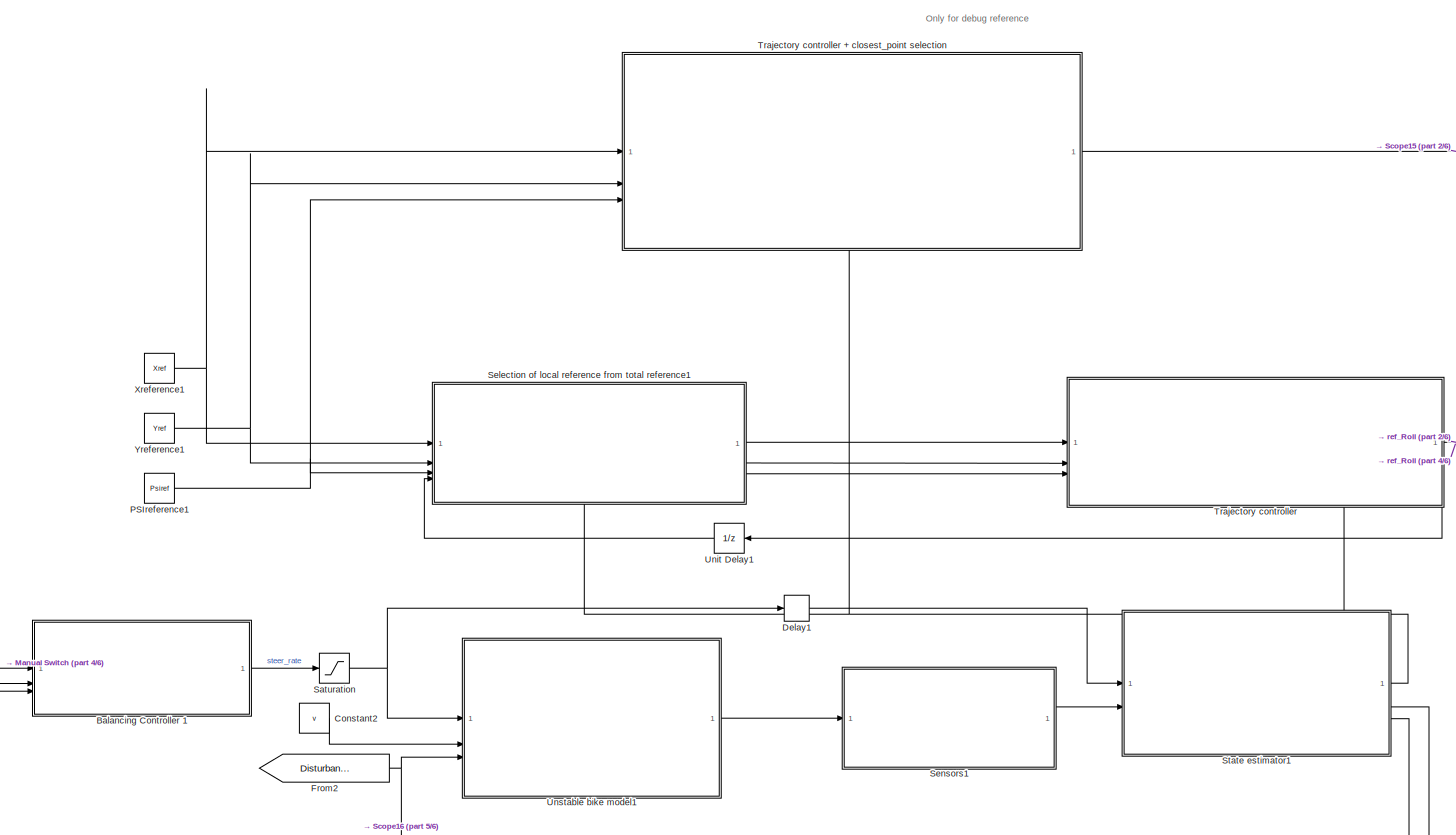
[diagram: root canvas - part 1/6, center side, full height]
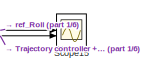
[diagram: root canvas - part 2/6, central region]
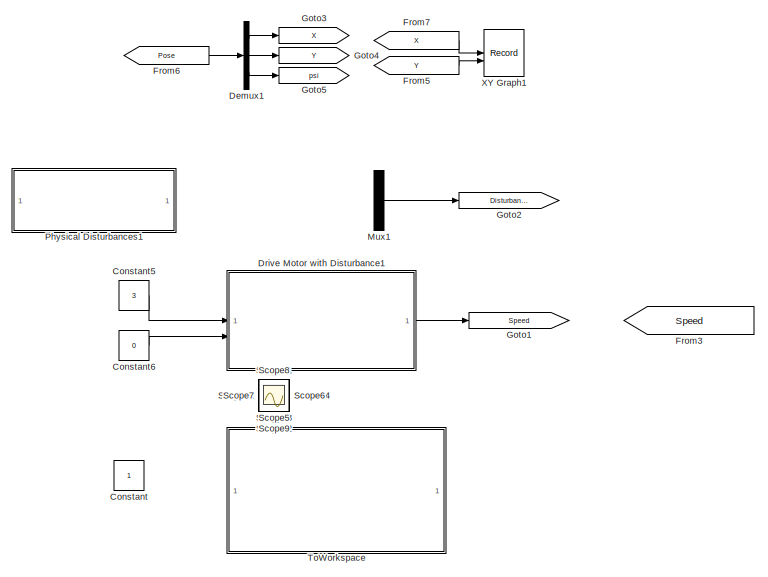
[diagram: root canvas - part 3/6, bottom right region]
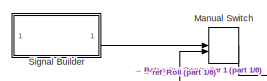
[diagram: root canvas - part 4/6, middle left region]
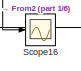
[diagram: root canvas - part 5/6, bottom left region]
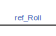
[diagram: root canvas - part 6/6, bottom left region]
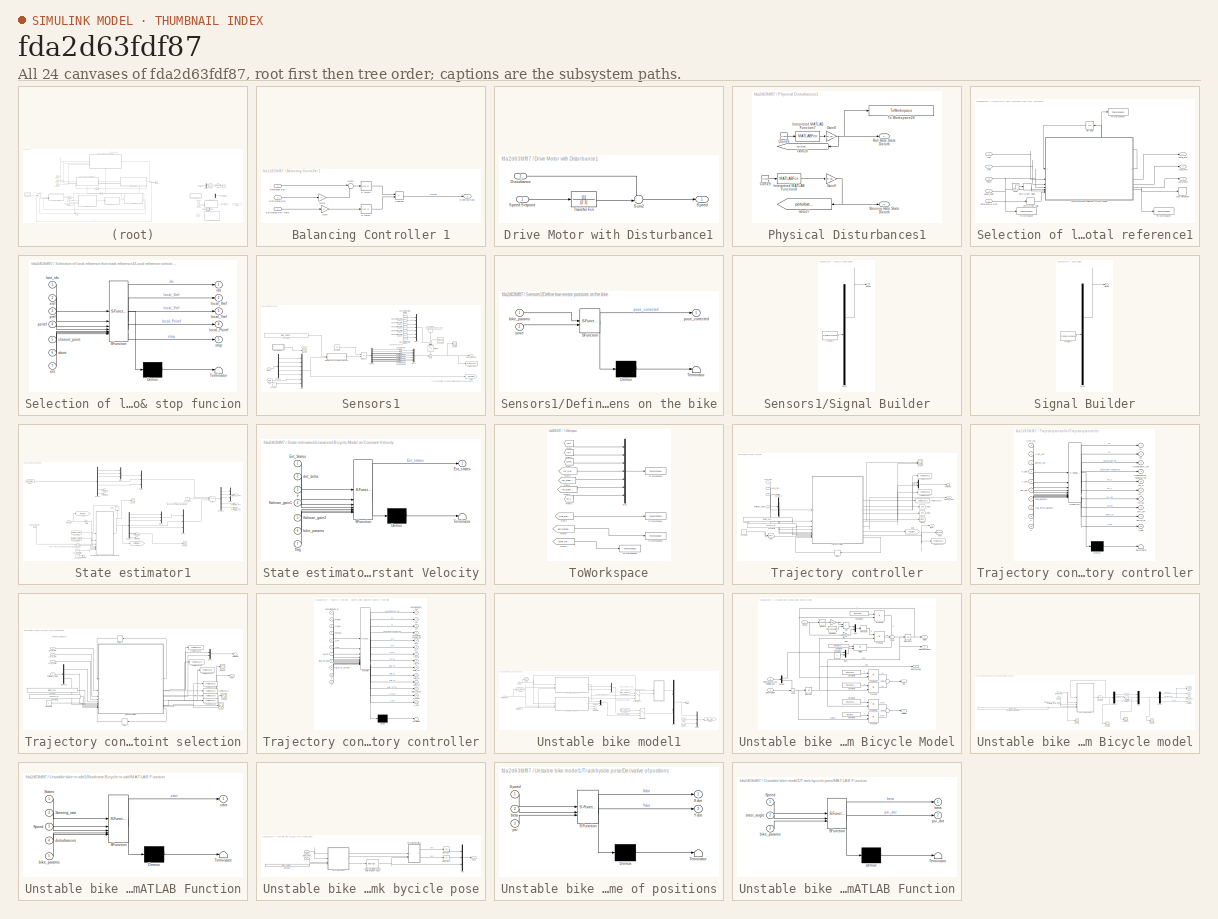
[diagram: thumbnail index - all 24 canvases of the model, root first then tree order]
MODEL slx_fda2d63fdf87
KIND model
CONFIG AbsTol = auto
CONFIG EnableMultiTasking = off
CONFIG FixedStep = auto
CONFIG MaxStep = auto
CONFIG MinStep = auto
CONFIG RelTol = 1e-3
CONFIG SampleTimeConstraint = Unconstrained
CONFIG SolverName = VariableStepAuto
CONFIG StartTime = 0.0
CONFIG StopTime = sim_time-0.02
BLOCK [SubSystem] Balancing Controller 1
  MinAlgLoopOccurrences = on
  SystemSampleTime = Ts
  TreatAsAtomicUnit = on
BLOCK [Reference] Balancing Controller 1/D term1  REF=slpidlib/PID Controller
  SourceBlock = slpidlib/PID Controller
  SourceType = PID 1dof
BLOCK [Inport] Balancing Controller 1/Estimated Roll
  Port = 2
BLOCK [Inport] Balancing Controller 1/Estimated Roll Rate
  Port = 3
BLOCK [Gain] Balancing Controller 1/Gain
BLOCK [Gain] Balancing Controller 1/Gain1
BLOCK [Reference] Balancing Controller 1/P term1  REF=slpidlib/PID Controller
  SourceBlock = slpidlib/PID Controller
  SourceType = PID 1dof
BLOCK [Inport] Balancing Controller 1/Reference Roll
BLOCK [Outport] Balancing Controller 1/Steering Rate
BLOCK [Sum] Balancing Controller 1/Subtract
  IconShape = rectangular
  Inputs = +-
BLOCK [Sum] Balancing Controller 1/Sum2
  Inputs = |+-
BLOCK [Constant] Constant
  IOType = siggen
BLOCK [Constant] Constant2
  Value = v
BLOCK [Constant] Constant5
  Value = 3
BLOCK [Constant] Constant6
  Value = 0
BLOCK [Delay] Delay1
  DelayLength = 1
  InputPortMap = u0
  SampleTime = Ts
BLOCK [Demux] Demux1
  Commented = on
  Outputs = 3
BLOCK [SubSystem] Drive Motor with Disturbance1
BLOCK [Inport] Drive Motor with Disturbance1/Disturbance
  Port = 2
BLOCK [Outport] Drive Motor with Disturbance1/Speed
BLOCK [Inport] Drive Motor with Disturbance1/Speed Setpoint
BLOCK [Sum] Drive Motor with Disturbance1/Sum2
  Inputs = ++|
BLOCK [TransferFcn] Drive Motor with Disturbance1/Transfer Fcn
  Denominator = [2 1]
BLOCK [From] From2
  GotoTag = Disturbances
BLOCK [From] From3
  Commented = on
  GotoTag = Speed
  TagVisibility = global
BLOCK [From] From5
  Commented = on
  GotoTag = Y
BLOCK [From] From6
  Commented = on
  GotoTag = Pose
BLOCK [From] From7
  Commented = on
  GotoTag = X
BLOCK [Goto] Goto1
  Commented = on
  GotoTag = Speed
  TagVisibility = global
BLOCK [Goto] Goto2
  GotoTag = Disturbances
BLOCK [Goto] Goto3
  Commented = on
  GotoTag = X
BLOCK [Goto] Goto4
  Commented = on
  GotoTag = Y
BLOCK [Goto] Goto5
  Commented = on
  GotoTag = psi
BLOCK [ManualSwitch] Manual Switch
  CurrentSetting = 0
BLOCK [Mux] Mux1
  DisplayOption = bar
  Inputs = 2
BLOCK [Constant] PSIreference1
  Value = Psiref
BLOCK [SubSystem] Physical Disturbances1
  Commented = on
BLOCK [Clock] Physical Disturbances1/Clock8
  Decimation = 1
BLOCK [Clock] Physical Disturbances1/Clock9
  Decimation = 1
BLOCK [Gain] Physical Disturbances1/Gain8
  Gain = pert_phidot_state
BLOCK [Gain] Physical Disturbances1/Gain9
  Gain = pert_deltadot_state
BLOCK [Goto] Physical Disturbances1/Goto26
  Commented = on
  GotoTag = perturbation_phidot_state
  NameLocation = top
  TagVisibility = global
BLOCK [Goto] Physical Disturbances1/Goto27
  Commented = on
  GotoTag = perturbation_deltadot_state
  NameLocation = top
  TagVisibility = global
BLOCK [MATLABFcn] Physical Disturbances1/Interpreted MATLAB Function7
  MATLABFcn = double(pert_phidot_state_fun(u))
BLOCK [MATLABFcn] Physical Disturbances1/Interpreted MATLAB Function8
  MATLABFcn = double(pert_deltadot_state_fun(u))
BLOCK [Outport] Physical Disturbances1/Roll Rate State Disturb
BLOCK [Outport] Physical Disturbances1/Steering Rate State Disturb
  Port = 2
BLOCK [ToWorkspace] Physical Disturbances1/To Workspace28
  FixptAsFi = on
  MaxDataPoints = inf
  SampleTime = -1
  SaveFormat = Timeseries
  VariableName = Disturbance_RollRate
BLOCK [Saturate] Saturation
  LowerLimit = -deg2rad(336/2)
  UpperLimit = deg2rad(336/2)
BLOCK [Scope] Scope
  Floating = off
  IOType = viewer
  NumInputPorts = 1
  ScopeSpecificationString = Simulink.scopes.TimeScopeBlockCfg('CurrentConfiguration', extmgr.ConfigurationSet(extmgr.Configuration('Core','General UI',true),extmgr.Configuration('Core','Source UI',true),extmgr.Configuration('Sources','WiredSimulink',true),extmgr.Configuration('Visuals','Time Domain',true,'SerializedDisplays',{struct('MinYLimReal','-1.00000','MaxYLimReal','1.00000','YLabelReal','','MinYLimMag','0.00000','MaxY...<+1349ch>
BLOCK [Scope] Scope1
  Floating = off
  IOType = viewer
  NumInputPorts = 1
  ScopeSpecificationString = Simulink.scopes.TimeScopeBlockCfg('CurrentConfiguration', extmgr.ConfigurationSet(extmgr.Configuration('Core','General UI',true),extmgr.Configuration('Core','Source UI',true),extmgr.Configuration('Sources','WiredSimulink',true,'DataLoggingVariableName','ScopeData1'),extmgr.Configuration('Visuals','Time Domain',true,'SerializedDisplays',{struct('MinYLimReal','-1.00000','MaxYLimReal','1.00000','YLab...<+1388ch>
BLOCK [Scope] Scope10
  Floating = off
  IOType = viewer
  NumInputPorts = 1
  ScopeSpecificationString = Simulink.scopes.TimeScopeBlockCfg('CurrentConfiguration', extmgr.ConfigurationSet(extmgr.Configuration('Core','General UI',true),extmgr.Configuration('Core','Source UI',true),extmgr.Configuration('Sources','WiredSimulink',true,'DataLoggingVariableName','ScopeData10'),extmgr.Configuration('Visuals','Time Domain',true,'SerializedDisplays',{struct('MinYLimReal','-1.00000','MaxYLimReal','1.00000','YLa...<+1389ch>
BLOCK [Scope] Scope11
  Floating = off
  IOType = viewer
  NumInputPorts = 1
  ScopeSpecificationString = Simulink.scopes.TimeScopeBlockCfg('CurrentConfiguration', extmgr.ConfigurationSet(extmgr.Configuration('Core','General UI',true),extmgr.Configuration('Core','Source UI',true),extmgr.Configuration('Sources','WiredSimulink',true,'DataLoggingVariableName','ScopeData11'),extmgr.Configuration('Visuals','Time Domain',true,'SerializedDisplays',{struct('MinYLimReal','-1.00000','MaxYLimReal','1.00000','YLa...<+1389ch>
BLOCK [Scope] Scope12
  Floating = off
  IOType = viewer
  NumInputPorts = 1
  ScopeSpecificationString = Simulink.scopes.TimeScopeBlockCfg('CurrentConfiguration', extmgr.ConfigurationSet(extmgr.Configuration('Core','General UI',true),extmgr.Configuration('Core','Source UI',true),extmgr.Configuration('Sources','WiredSimulink',true,'DataLoggingVariableName','ScopeData12'),extmgr.Configuration('Visuals','Time Domain',true,'SerializedDisplays',{struct('MinYLimReal','-1.00000','MaxYLimReal','1.00000','YLa...<+1389ch>
BLOCK [Scope] Scope13
  Floating = off
  IOType = viewer
  NumInputPorts = 1
  ScopeSpecificationString = Simulink.scopes.TimeScopeBlockCfg('CurrentConfiguration', extmgr.ConfigurationSet(extmgr.Configuration('Core','General UI',true),extmgr.Configuration('Core','Source UI',true),extmgr.Configuration('Sources','WiredSimulink',true,'DataLoggingVariableName','ScopeData13'),extmgr.Configuration('Visuals','Time Domain',true,'SerializedDisplays',{struct('MinYLimReal','-1.00000','MaxYLimReal','1.00000','YLa...<+1389ch>
BLOCK [Scope] Scope14
  Floating = off
  IOType = viewer
  NumInputPorts = 1
  ScopeSpecificationString = Simulink.scopes.TimeScopeBlockCfg('CurrentConfiguration', extmgr.ConfigurationSet(extmgr.Configuration('Core','General UI',true),extmgr.Configuration('Core','Source UI',true),extmgr.Configuration('Sources','WiredSimulink',true,'DataLoggingVariableName','ScopeData14'),extmgr.Configuration('Visuals','Time Domain',true,'SerializedDisplays',{struct('MinYLimReal','-0.01119','MaxYLimReal','0.02448','YLa...<+1389ch>
BLOCK [Scope] Scope15
  Floating = off
  NumInputPorts = 2
  ScopeSpecificationString = Simulink.scopes.TimeScopeBlockCfg('CurrentConfiguration', extmgr.ConfigurationSet(extmgr.Configuration('Core','General UI',true),extmgr.Configuration('Core','Source UI',true),extmgr.Configuration('Sources','WiredSimulink',true,'DataLoggingVariableName','ScopeData2'),extmgr.Configuration('Visuals','Time Domain',true,'SerializedDisplays',{struct('MinYLimReal','-0.02049','MaxYLimReal','0.0079','YLabe...<+1513ch>
BLOCK [Scope] Scope16
  Floating = off
  NumInputPorts = 1
  ScopeSpecificationString = Simulink.scopes.TimeScopeBlockCfg('CurrentConfiguration', extmgr.ConfigurationSet(extmgr.Configuration('Core','General UI',true),extmgr.Configuration('Core','Source UI',true),extmgr.Configuration('Sources','WiredSimulink',true,'DataLoggingVariableName','ScopeData5'),extmgr.Configuration('Visuals','Time Domain',true,'SerializedDisplays',{struct('MinYLimReal','-1.00000','MaxYLimReal','1.00000','YLab...<+1476ch>
BLOCK [Scope] Scope2
  Floating = off
  IOType = viewer
  NumInputPorts = 1
  ScopeSpecificationString = Simulink.scopes.TimeScopeBlockCfg('CurrentConfiguration', extmgr.ConfigurationSet(extmgr.Configuration('Core','General UI',true),extmgr.Configuration('Core','Source UI',true),extmgr.Configuration('Sources','WiredSimulink',true,'DataLoggingVariableName','ScopeData2'),extmgr.Configuration('Visuals','Time Domain',true,'SerializedDisplays',{struct('MinYLimReal','-1.00000','MaxYLimReal','1.00000','YLab...<+1388ch>
BLOCK [Scope] Scope3
  Floating = off
  IOType = viewer
  NumInputPorts = 1
  ScopeSpecificationString = Simulink.scopes.TimeScopeBlockCfg('CurrentConfiguration', extmgr.ConfigurationSet(extmgr.Configuration('Core','General UI',true),extmgr.Configuration('Core','Source UI',true),extmgr.Configuration('Sources','WiredSimulink',true,'DataLoggingVariableName','ScopeData3'),extmgr.Configuration('Visuals','Time Domain',true,'SerializedDisplays',{struct('MinYLimReal','-1.00000','MaxYLimReal','1.00000','YLab...<+1388ch>
BLOCK [Scope] Scope4
  Floating = off
  IOType = viewer
  NumInputPorts = 1
  ScopeSpecificationString = Simulink.scopes.TimeScopeBlockCfg('CurrentConfiguration', extmgr.ConfigurationSet(extmgr.Configuration('Core','General UI',true),extmgr.Configuration('Core','Source UI',true),extmgr.Configuration('Sources','WiredSimulink',true,'DataLoggingVariableName','ScopeData4'),extmgr.Configuration('Visuals','Time Domain',true,'SerializedDisplays',{struct('MinYLimReal','-1.00000','MaxYLimReal','1.00000','YLab...<+1388ch>
BLOCK [Scope] Scope5
  Floating = off
  IOType = viewer
  NumInputPorts = 1
  ScopeSpecificationString = Simulink.scopes.TimeScopeBlockCfg('CurrentConfiguration', extmgr.ConfigurationSet(extmgr.Configuration('Core','General UI',true),extmgr.Configuration('Core','Source UI',true),extmgr.Configuration('Sources','WiredSimulink',true,'DataLoggingVariableName','ScopeData5'),extmgr.Configuration('Visuals','Time Domain',true,'SerializedDisplays',{struct('MinYLimReal','-1.00000','MaxYLimReal','1.00000','YLab...<+1388ch>
BLOCK [Scope] Scope6
  Floating = off
  IOType = viewer
  NumInputPorts = 1
  ScopeSpecificationString = Simulink.scopes.TimeScopeBlockCfg('CurrentConfiguration', extmgr.ConfigurationSet(extmgr.Configuration('Core','General UI',true),extmgr.Configuration('Core','Source UI',true),extmgr.Configuration('Sources','WiredSimulink',true,'DataLoggingVariableName','ScopeData6'),extmgr.Configuration('Visuals','Time Domain',true,'SerializedDisplays',{struct('MinYLimReal','-1.00000','MaxYLimReal','1.00000','YLab...<+1388ch>
BLOCK [Scope] Scope7
  Floating = off
  IOType = viewer
  NumInputPorts = 1
  ScopeSpecificationString = Simulink.scopes.TimeScopeBlockCfg('CurrentConfiguration', extmgr.ConfigurationSet(extmgr.Configuration('Core','General UI',true),extmgr.Configuration('Core','Source UI',true),extmgr.Configuration('Sources','WiredSimulink',true,'DataLoggingVariableName','ScopeData7'),extmgr.Configuration('Visuals','Time Domain',true,'SerializedDisplays',{struct('MinYLimReal','-1.00000','MaxYLimReal','1.00000','YLab...<+1388ch>
BLOCK [Scope] Scope8
  Floating = off
  IOType = viewer
  NumInputPorts = 1
  ScopeSpecificationString = Simulink.scopes.TimeScopeBlockCfg('CurrentConfiguration', extmgr.ConfigurationSet(extmgr.Configuration('Core','General UI',true),extmgr.Configuration('Core','Source UI',true),extmgr.Configuration('Sources','WiredSimulink',true,'DataLoggingVariableName','ScopeData8'),extmgr.Configuration('Visuals','Time Domain',true,'SerializedDisplays',{struct('MinYLimReal','-3.00505','MaxYLimReal','27.04548','YLa...<+1458ch>
BLOCK [Scope] Scope9
  Floating = off
  IOType = viewer
  NumInputPorts = 1
  ScopeSpecificationString = Simulink.scopes.TimeScopeBlockCfg('CurrentConfiguration', extmgr.ConfigurationSet(extmgr.Configuration('Core','General UI',true),extmgr.Configuration('Core','Source UI',true),extmgr.Configuration('Sources','WiredSimulink',true,'DataLoggingVariableName','ScopeData9'),extmgr.Configuration('Visuals','Time Domain',true,'SerializedDisplays',{struct('MinYLimReal','-3.00505','MaxYLimReal','27.04548','YLa...<+1392ch>
BLOCK [SubSystem] Selection of local reference from total reference1
  PortSchema = {"entries":[{"content":{"sides":[{"content":{"connectorIds":["In1","In2","In3","In4"]},"type":"ConnectorPlacement.EquallySpacedRectSide","uuid":"b129a8ce-0ab0-4745-b919-7f1f6310ba72"},{"content":{"connectorIds":["Out1","Out2","Out3"],"side":"RIGHT"},"type":"ConnectorPlacement.EquallySpacedRectSide","uuid":"29e87fb1-7c56-4cac-b724-1406f2c9c629"},{"content":{"connectorIds":[],"side":"TOP"},"type":"C...<+421ch>
BLOCK [Inport] Selection of local reference from total reference1/Estimated_X//Y//Psi
  Port = 5
BLOCK [SubSystem] Selection of local reference from total reference1/Local reference selection & stop funcion
  ErrorFcn = Stateflow.Translate.translate
  PermitHierarchicalResolution = ExplicitOnly
  SFBlockType = MATLAB Function
  TreatAsAtomicUnit = on
BLOCK [Demux] Selection of local reference from total reference1/Local reference selection & stop funcion/ Demux 
  Outputs = 1
BLOCK [S-Function] Selection of local reference from total reference1/Local reference selection & stop funcion/ SFunction 
  EnableBusSupport = on
  FunctionName = sf_sfun
  Parameters = hor_dis,ref_dis
  PortCounts = [7 6]
  SFcnIsStateOwnerBlock = off
  SFunctionDeploymentMode = off
  Tag = Stateflow S-Function 1
BLOCK [Terminator] Selection of local reference from total reference1/Local reference selection & stop funcion/ Terminator 
BLOCK [Inport] Selection of local reference from total reference1/Local reference selection & stop funcion/abort
  Port = 6
BLOCK [Inport] Selection of local reference from total reference1/Local reference selection & stop funcion/closest_point
  Port = 5
BLOCK [Inport] Selection of local reference from total reference1/Local reference selection & stop funcion/est
  Port = 7
BLOCK [Outport] Selection of local reference from total reference1/Local reference selection & stop funcion/ids
BLOCK [Inport] Selection of local reference from total reference1/Local reference selection & stop funcion/last_ids
BLOCK [Outport] Selection of local reference from total reference1/Local reference selection & stop funcion/local_Psiref
  Port = 4
BLOCK [Outport] Selection of local reference from total reference1/Local reference selection & stop funcion/local_Xref
  Port = 2
BLOCK [Outport] Selection of local reference from total reference1/Local reference selection & stop funcion/local_Yref
  Port = 3
BLOCK [Inport] Selection of local reference from total reference1/Local reference selection & stop funcion/psiref
  Port = 4
BLOCK [Outport] Selection of local reference from total reference1/Local reference selection & stop funcion/stop
  Port = 5
BLOCK [Inport] Selection of local reference from total reference1/Local reference selection & stop funcion/xref
  Port = 2
BLOCK [Inport] Selection of local reference from total reference1/Local reference selection & stop funcion/yref
  Port = 3
BLOCK [Outport] Selection of local reference from total reference1/Local_Psiref
  Port = 3
BLOCK [Outport] Selection of local reference from total reference1/Local_Xref
BLOCK [Outport] Selection of local reference from total reference1/Local_Yref
  Port = 2
BLOCK [Inport] Selection of local reference from total reference1/Psiref
  Port = 3
BLOCK [Step] Selection of local reference from total reference1/Step
  After = 0
  SampleTime = 0
  Time = 20
BLOCK [Stop] Selection of local reference from total reference1/Stop Simulation
BLOCK [ToWorkspace] Selection of local reference from total reference1/To Workspace
  FixptAsFi = on
  MaxDataPoints = inf
  SampleTime = -1
  SaveFormat = Timeseries
  VariableName = closest_point
BLOCK [ToWorkspace] Selection of local reference from total reference1/To Workspace1
  FixptAsFi = on
  MaxDataPoints = inf
  SampleTime = -1
  SaveFormat = Timeseries
  VariableName = ids
BLOCK [ToWorkspace] Selection of local reference from total reference1/To Workspace2
  FixptAsFi = on
  MaxDataPoints = inf
  SampleTime = -1
  SaveFormat = Timeseries
  VariableName = stop
BLOCK [UnitDelay] Selection of local reference from total reference1/Unit Delay
  HasFrameUpgradeWarning = on
  InitialCondition = 1
  SampleTime = Ts
BLOCK [Inport] Selection of local reference from total reference1/Xref
BLOCK [Inport] Selection of local reference from total reference1/Yref
  Port = 2
BLOCK [ZeroOrderHold] Selection of local reference from total reference1/Zero-Order Hold
  SampleTime = -1
BLOCK [ZeroOrderHold] Selection of local reference from total reference1/Zero-Order Hold1
  SampleTime = -1
BLOCK [Inport] Selection of local reference from total reference1/closes_point
  Port = 4
BLOCK [SubSystem] Sensors1
BLOCK [Reference] Sensors1/Band-Limited White Noise  REF=simulink/Sources/Band-Limited
White Noise
  SourceBlock = simulink/Sources/Band-Limited\nWhite Noise
  SourceType = Band-Limited White Noise.
BLOCK [Reference] Sensors1/Band-Limited White Noise1  REF=simulink/Sources/Band-Limited
White Noise
  SourceBlock = simulink/Sources/Band-Limited\nWhite Noise
  SourceType = Band-Limited White Noise.
BLOCK [Reference] Sensors1/Band-Limited White Noise2  REF=simulink/Sources/Band-Limited
White Noise
  SourceBlock = simulink/Sources/Band-Limited\nWhite Noise
  SourceType = Band-Limited White Noise.
BLOCK [Reference] Sensors1/Band-Limited White Noise3  REF=simulink/Sources/Band-Limited
White Noise
  SourceBlock = simulink/Sources/Band-Limited\nWhite Noise
  SourceType = Band-Limited White Noise.
BLOCK [Reference] Sensors1/Band-Limited White Noise4  REF=simulink/Sources/Band-Limited
White Noise
  SourceBlock = simulink/Sources/Band-Limited\nWhite Noise
  SourceType = Band-Limited White Noise.
BLOCK [Reference] Sensors1/Band-Limited White Noise5  REF=simulink/Sources/Band-Limited
White Noise
  SourceBlock = simulink/Sources/Band-Limited\nWhite Noise
  SourceType = Band-Limited White Noise.
BLOCK [Reference] Sensors1/Band-Limited White Noise6  REF=simulink/Sources/Band-Limited
White Noise
  SourceBlock = simulink/Sources/Band-Limited\nWhite Noise
  SourceType = Band-Limited White Noise.
BLOCK [Constant] Sensors1/Constant
  Value = v
BLOCK [Constant] Sensors1/Constant1
  Value = C1
BLOCK [Constant] Sensors1/Constant2
  NameLocation = top
  Value = zeros(7,1)
BLOCK [Constant] Sensors1/Constant3
  NameLocation = left
  Value = 0
BLOCK [Constant] Sensors1/Constant5
  Value = [bike_params.Xgps bike_params.Ygps bike_params.Hgps]
BLOCK [SubSystem] Sensors1/Define true sensor positions on the bike
  ErrorFcn = Stateflow.Translate.translate
  LibrarySourceBlock = simulink/User-Defined\nFunctions/MATLAB Function
  PermitHierarchicalResolution = ExplicitOnly
  SFBlockType = MATLAB Function
  TreatAsAtomicUnit = on
BLOCK [Demux] Sensors1/Define true sensor positions on the bike/ Demux 
  Outputs = 1
BLOCK [S-Function] Sensors1/Define true sensor positions on the bike/ SFunction 
  EnableBusSupport = on
  FunctionName = sf_sfun
  PortCounts = [2 2]
  SFcnIsStateOwnerBlock = off
  SFunctionDeploymentMode = off
  Tag = Stateflow S-Function 6
BLOCK [Terminator] Sensors1/Define true sensor positions on the bike/ Terminator 
BLOCK [Inport] Sensors1/Define true sensor positions on the bike/bike_params
BLOCK [Inport] Sensors1/Define true sensor positions on the bike/pose
  Port = 2
BLOCK [Outport] Sensors1/Define true sensor positions on the bike/pose_corrected
BLOCK [Demux] Sensors1/Demux
  Outputs = 7
BLOCK [Demux] Sensors1/Demux1
  Outputs = 5
BLOCK [From] Sensors1/From
  GotoTag = delta
  TagVisibility = global
BLOCK [Goto] Sensors1/Goto
  GotoTag = Truestates
  TagVisibility = global
BLOCK [Outport] Sensors1/Measurements
BLOCK [Mux] Sensors1/Mux
  DisplayOption = bar
  Inputs = 7
BLOCK [Mux] Sensors1/Mux1
  DisplayOption = bar
  Inputs = 7
BLOCK [Mux] Sensors1/Mux2
  DisplayOption = bar
  Inputs = 7
BLOCK [Product] Sensors1/Product
  Multiplication = Matrix(*)
BLOCK [Scope] Sensors1/Scope
  Floating = off
  NumInputPorts = 1
  ScopeSpecificationString = Simulink.scopes.TimeScopeBlockCfg('CurrentConfiguration', extmgr.ConfigurationSet(extmgr.Configuration('Core','General UI',true),extmgr.Configuration('Core','Source UI',true),extmgr.Configuration('Sources','WiredSimulink',true),extmgr.Configuration('Visuals','Time Domain',true,'SerializedDisplays',{struct('MinYLimReal','-5.29683','MaxYLimReal','43.95879','YLabelReal','','MinYLimMag','0.00000','Max...<+1377ch>
BLOCK [Scope] Sensors1/Scope20
  Floating = off
  NumInputPorts = 1
  ScopeSpecificationString = Simulink.scopes.TimeScopeBlockCfg('CurrentConfiguration', extmgr.ConfigurationSet(extmgr.Configuration('Core','General UI',true),extmgr.Configuration('Core','Source UI',true),extmgr.Configuration('Sources','WiredSimulink',true,'DataLoggingVariableName','ScopeData1'),extmgr.Configuration('Visuals','Time Domain',true,'SerializedDisplays',{struct('MinYLimReal','-0.65853','MaxYLimReal','5.85394','YLab...<+1440ch>
BLOCK [SubSystem] Sensors1/Signal Builder
  ClipboardFcn = sigbuilder_block('clipboard');
  CloseFcn = sigbuilder_block('close');
  ContinueFcn = sigbuilder_block('continue');
  CopyFcn = sigbuilder_block('copy');
  DeleteFcn = sigbuilder_block('delete');
  LoadFcn = sigbuilder_block('load');
  MaskHideContents = on
  ModelCloseFcn = sigbuilder_block('modelClose');
  NameChangeFcn = sigbuilder_block('namechange');
  OpenFcn = sigbuilder_block('open',[5.4 36 1141.2 516.6 ]);
  PauseFcn = sigbuilder_block('pause');
  PreSaveFcn = sigbuilder_block('preSave');
  StartFcn = sigbuilder_block('start');
  StopFcn = sigbuilder_block('stop');
  Tag = STV Subsys
BLOCK [Demux] Sensors1/Signal Builder/Demux
  DisplayOption = none
  Outputs = 1
  Tag = STV Demux
BLOCK [FromWorkspace] Sensors1/Signal Builder/FromWs
  Tag = STV FromWs
  VariableName = tuvar
BLOCK [Outport] Sensors1/Signal Builder/Signal 1
  Tag = STV Outport
BLOCK [Inport] Sensors1/States
BLOCK [Sum] Sensors1/Sum
  Inputs = ++|
BLOCK [Switch] Sensors1/Switch1
  Criteria = u2 ~= 0
  InputSameDT = off
  NameLocation = left
  SaturateOnIntegerOverflow = off
BLOCK [ToWorkspace] Sensors1/To Workspace
  FixptAsFi = on
  MaxDataPoints = inf
  SampleTime = -1
  SaveFormat = Timeseries
  VariableName = measurements
BLOCK [ZeroOrderHold] Sensors1/Zero-Order Hold
  SampleTime = 10*Ts
BLOCK [ZeroOrderHold] Sensors1/Zero-Order Hold1
  SampleTime = 10*Ts
BLOCK [ZeroOrderHold] Sensors1/Zero-Order Hold2
  SampleTime = Ts
BLOCK [ZeroOrderHold] Sensors1/Zero-Order Hold3
  SampleTime = Ts
BLOCK [ZeroOrderHold] Sensors1/Zero-Order Hold4
  SampleTime = Ts
BLOCK [ZeroOrderHold] Sensors1/Zero-Order Hold5
  SampleTime = Ts
BLOCK [ZeroOrderHold] Sensors1/Zero-Order Hold6
  SampleTime = Ts
BLOCK [SubSystem] Signal Builder
  ClipboardFcn = sigbuilder_block('clipboard');
  CloseFcn = sigbuilder_block('close');
  ContinueFcn = sigbuilder_block('continue');
  CopyFcn = sigbuilder_block('copy');
  DeleteFcn = sigbuilder_block('delete');
  LoadFcn = sigbuilder_block('load');
  MaskHideContents = on
  ModelCloseFcn = sigbuilder_block('modelClose');
  NameChangeFcn = sigbuilder_block('namechange');
  OpenFcn = sigbuilder_block('open',[418.8 162 550.8 400.2 ]);
  PauseFcn = sigbuilder_block('pause');
  PreSaveFcn = sigbuilder_block('preSave');
  StartFcn = sigbuilder_block('start');
  StopFcn = sigbuilder_block('stop');
  Tag = STV Subsys
BLOCK [Demux] Signal Builder/Demux
  DisplayOption = none
  Outputs = 1
  Tag = STV Demux
BLOCK [FromWorkspace] Signal Builder/FromWs
  Tag = STV FromWs
  VariableName = tuvar
BLOCK [Outport] Signal Builder/Signal 1
  Tag = STV Outport
BLOCK [SubSystem] State estimator1
BLOCK [Constant] State estimator1/Constant
  Value = [bike_params.Xgps_mod bike_params.Ygps_mod bike_params.Hgps_mod]
BLOCK [Constant] State estimator1/Constant2
  SampleTime = Ts
  Value = Kalman_gain1
BLOCK [Constant] State estimator1/Constant3
  Value = 0
BLOCK [Constant] State estimator1/Constant4
  SampleTime = Ts
  Value = Kalman_gain2
BLOCK [Constant] State estimator1/Constant5
  Value = 0
BLOCK [Reference] State estimator1/Counter Limited  REF=simulink/Sources/Counter
Limited
  SourceBlock = simulink/Sources/Counter\nLimited
  SourceType = Counter Limited
BLOCK [Delay] State estimator1/Delay
  DelayLength = 1
  InitialCondition = [initial_state_estimate.x initial_state_estimate.y initial_state_estimate.heading initial_state.roll initial_state.roll_rate initial_state.steering v]
  InputPortMap = u0
  NameLocation = right
  SampleTime = Ts
BLOCK [Demux] State estimator1/Demux
  Outputs = 7
BLOCK [Demux] State estimator1/Demux1
  Outputs = 7
BLOCK [Demux] State estimator1/Demux3
  Outputs = 5
BLOCK [Outport] State estimator1/Estimated_Roll
  Port = 2
  VectorParamsAs1DForOutWhenUnconnected = off
BLOCK [Outport] State estimator1/Estimated_Roll_Rate
  Port = 3
  VectorParamsAs1DForOutWhenUnconnected = off
BLOCK [Outport] State estimator1/Estimated_X//Y//Psi
  VectorParamsAs1DForOutWhenUnconnected = off
BLOCK [From] State estimator1/From
  GotoTag = Truestates
  TagVisibility = global
BLOCK [Gain] State estimator1/Gain
BLOCK [Goto] State estimator1/Goto
  GotoTag = estimated_states
  TagVisibility = global
BLOCK [Goto] State estimator1/Goto1
  GotoTag = steer_rate_estimator
  TagVisibility = global
BLOCK [SubSystem] State estimator1/Linearized Bicycle Model on Constant Velocity
  ErrorFcn = Stateflow.Translate.translate
  PermitHierarchicalResolution = ExplicitOnly
  SFBlockType = MATLAB Function
  TreatAsAtomicUnit = on
BLOCK [Demux] State estimator1/Linearized Bicycle Model on Constant Velocity/ Demux 
  Outputs = 1
BLOCK [S-Function] State estimator1/Linearized Bicycle Model on Constant Velocity/ SFunction 
  EnableBusSupport = on
  FunctionName = sf_sfun
  Parameters = A_d,B_d,C1,C2,D1,D2,T
  PortCounts = [7 2]
  SFcnIsStateOwnerBlock = off
  SFunctionDeploymentMode = off
  Tag = Stateflow S-Function 8
BLOCK [Terminator] State estimator1/Linearized Bicycle Model on Constant Velocity/ Terminator 
BLOCK [Inport] State estimator1/Linearized Bicycle Model on Constant Velocity/Est_States
BLOCK [Outport] State estimator1/Linearized Bicycle Model on Constant Velocity/Est_states
  VectorParamsAs1DForOutWhenUnconnected = off
BLOCK [Inport] State estimator1/Linearized Bicycle Model on Constant Velocity/Kalman_gain1
  Port = 4
BLOCK [Inport] State estimator1/Linearized Bicycle Model on Constant Velocity/Kalman_gain2
  Port = 5
BLOCK [Inport] State estimator1/Linearized Bicycle Model on Constant Velocity/bike_params
  Port = 6
BLOCK [Inport] State estimator1/Linearized Bicycle Model on Constant Velocity/dot_delta
  Port = 2
BLOCK [Inport] State estimator1/Linearized Bicycle Model on Constant Velocity/flag
  Port = 7
BLOCK [Inport] State estimator1/Linearized Bicycle Model on Constant Velocity/y
  Port = 3
BLOCK [Mux] State estimator1/Mux
  DisplayOption = bar
  Inputs = 3
BLOCK [Mux] State estimator1/Mux1
  DisplayOption = bar
  Inputs = 3
BLOCK [Mux] State estimator1/Mux2
  DisplayOption = bar
  Inputs = 3
BLOCK [Mux] State estimator1/Mux3
  DisplayOption = bar
  Inputs = 3
BLOCK [Mux] State estimator1/Mux4
  DisplayOption = bar
  Inputs = 3
BLOCK [Scope] State estimator1/Scope
  Floating = off
  NumInputPorts = 1
  ScopeSpecificationString = Simulink.scopes.TimeScopeBlockCfg('CurrentConfiguration', extmgr.ConfigurationSet(extmgr.Configuration('Core','General UI',true),extmgr.Configuration('Core','Source UI',true),extmgr.Configuration('Sources','WiredSimulink',true,'DataLoggingVariableName','ScopeData2'),extmgr.Configuration('Visuals','Time Domain',true,'SerializedDisplays',{struct('MinYLimReal','-5.025','MaxYLimReal','44.00674','YLabe...<+1706ch>
BLOCK [Scope] State estimator1/Scope1
  Floating = off
  NumInputPorts = 1
  ScopeSpecificationString = Simulink.scopes.TimeScopeBlockCfg('CurrentConfiguration', extmgr.ConfigurationSet(extmgr.Configuration('Core','General UI',true),extmgr.Configuration('Core','Source UI',true),extmgr.Configuration('Sources','WiredSimulink',true,'DataLoggingVariableName','ScopeData1'),extmgr.Configuration('Visuals','Time Domain',true,'SerializedDisplays',{struct('MinYLimReal','-1262.20518','MaxYLimReal','140.60128',...<+1465ch>
BLOCK [Switch] State estimator1/Switch
  Criteria = u2 ~= 0
  InputSameDT = off
  SaturateOnIntegerOverflow = off
BLOCK [Terminator] State estimator1/Terminator
BLOCK [Terminator] State estimator1/Terminator1
BLOCK [Terminator] State estimator1/Terminator2
BLOCK [Terminator] State estimator1/Terminator3
BLOCK [Terminator] State estimator1/Terminator4
BLOCK [Inport] State estimator1/measurements
  Port = 2
BLOCK [Inport] State estimator1/steer_rate
BLOCK [SubSystem] ToWorkspace
BLOCK [From] ToWorkspace/From
  GotoTag = refX
  TagVisibility = global
BLOCK [From] ToWorkspace/From1
  GotoTag = refY
  TagVisibility = global
BLOCK [From] ToWorkspace/From2
  GotoTag = refPsi
  TagVisibility = global
BLOCK [From] ToWorkspace/From3
  GotoTag = ref_steer_angle
  TagVisibility = global
BLOCK [From] ToWorkspace/From4
  GotoTag = ref_Roll
  TagVisibility = global
BLOCK [From] ToWorkspace/From5
  GotoTag = ref_v
  TagVisibility = global
BLOCK [From] ToWorkspace/From6
  GotoTag = ref_steer_rate
  TagVisibility = global
BLOCK [From] ToWorkspace/From7
  GotoTag = true_states
  TagVisibility = global
BLOCK [From] ToWorkspace/From8
  GotoTag = estimated_states
  TagVisibility = global
BLOCK [From] ToWorkspace/From9
  GotoTag = steer_rate_estimator
  TagVisibility = global
BLOCK [Mux] ToWorkspace/Mux
  DisplayOption = bar
  Inputs = 7
BLOCK [ToWorkspace] ToWorkspace/To Workspace
  FixptAsFi = on
  MaxDataPoints = inf
  SampleTime = -1
  SaveFormat = Timeseries
  VariableName = ref_states
BLOCK [ToWorkspace] ToWorkspace/To Workspace1
  FixptAsFi = on
  MaxDataPoints = inf
  SampleTime = -1
  SaveFormat = Timeseries
  VariableName = bike_states
BLOCK [ToWorkspace] ToWorkspace/To Workspace2
  FixptAsFi = on
  MaxDataPoints = inf
  SampleTime = -1
  SaveFormat = Timeseries
  VariableName = steerrate_input
BLOCK [ToWorkspace] ToWorkspace/To Workspace6
  FixptAsFi = on
  MaxDataPoints = inf
  SampleTime = -1
  SaveFormat = Timeseries
  VariableName = estimated_states
BLOCK [SubSystem] Trajectory controller
  PortSchema = {"entries":[{"content":{"sides":[{"content":{"connectorIds":["In1","In2","In3"]},"type":"ConnectorPlacement.EquallySpacedRectSide","uuid":"e7a2fb02-f6cc-45e9-8980-79d12a8832e3"},{"content":{"connectorIds":["Out1"],"side":"RIGHT"},"type":"ConnectorPlacement.EquallySpacedRectSide","uuid":"304c1e91-f1f4-462f-993e-75a0bfc51b31"},{"content":{"connectorIds":[],"side":"TOP"},"type":"ConnectorPlacement.Eq...<+408ch>
BLOCK [SubSystem] Trajectory controller + closest_point selection
  NameLocation = top
  PortSchema = {"entries":[{"content":{"sides":[{"content":{"connectorIds":["In1","In2","In3"]},"type":"ConnectorPlacement.EquallySpacedRectSide","uuid":"4e12ce37-1515-428d-8e72-ea3bf7cb0ff9"},{"content":{"connectorIds":["Out1"],"side":"RIGHT"},"type":"ConnectorPlacement.EquallySpacedRectSide","uuid":"a9718efd-1612-4f51-92cf-6f7a8bfe2bda"},{"content":{"connectorIds":[],"side":"TOP"},"type":"ConnectorPlacement.Eq...<+401ch>
BLOCK [Constant] Trajectory controller + closest_point selection/Constant
  Value = [g bike_params.lr bike_params.lf bike_params.lambda]
BLOCK [Constant] Trajectory controller + closest_point selection/Constant1
  Value = v
BLOCK [Constant] Trajectory controller + closest_point selection/Constant2
  Value = [k1 k2 e1_max]
BLOCK [Delay] Trajectory controller + closest_point selection/Delay
  DelayLength = 1
  InputPortMap = u0
  NameLocation = top
  SampleTime = Ts
BLOCK [Delay] Trajectory controller + closest_point selection/Delay1
  DelayLength = 1
  InitialCondition = 2
  InputPortMap = u0
  SampleTime = Ts
BLOCK [Demux] Trajectory controller + closest_point selection/Demux1
  Outputs = 3
BLOCK [Inport] Trajectory controller + closest_point selection/Estimated_states
  Port = 4
BLOCK [Inport] Trajectory controller + closest_point selection/Local_Psiref
  Port = 3
BLOCK [Inport] Trajectory controller + closest_point selection/Local_Xref
BLOCK [Inport] Trajectory controller + closest_point selection/Local_Yref
  Port = 2
BLOCK [Mux] Trajectory controller + closest_point selection/Mux1
  DisplayOption = bar
  Inputs = 2
BLOCK [Scope] Trajectory controller + closest_point selection/Scope
  Floating = off
  NumInputPorts = 1
  ScopeSpecificationString = Simulink.scopes.TimeScopeBlockCfg('CurrentConfiguration', extmgr.ConfigurationSet(extmgr.Configuration('Core','General UI',true),extmgr.Configuration('Core','Source UI',true),extmgr.Configuration('Sources','WiredSimulink',true,'DataLoggingVariableName','ScopeData1'),extmgr.Configuration('Visuals','Time Domain',true,'SerializedDisplays',{struct('MinYLimReal','-0.00135','MaxYLimReal','0.00019','YLab...<+1443ch>
BLOCK [Scope] Trajectory controller + closest_point selection/Scope1
  Floating = off
  NumInputPorts = 1
  ScopeSpecificationString = Simulink.scopes.TimeScopeBlockCfg('CurrentConfiguration', extmgr.ConfigurationSet(extmgr.Configuration('Core','General UI',true),extmgr.Configuration('Core','Source UI',true),extmgr.Configuration('Sources','WiredSimulink',true,'DataLoggingVariableName','ScopeData1'),extmgr.Configuration('Visuals','Time Domain',true,'SerializedDisplays',{struct('MinYLimReal','-0.8854','MaxYLimReal','-0.6854','YLabe...<+1415ch>
BLOCK [Scope] Trajectory controller + closest_point selection/Scope2
  Floating = off
  NumInputPorts = 1
  ScopeSpecificationString = Simulink.scopes.TimeScopeBlockCfg('CurrentConfiguration', extmgr.ConfigurationSet(extmgr.Configuration('Core','General UI',true),extmgr.Configuration('Core','Source UI',true),extmgr.Configuration('Sources','WiredSimulink',true,'DataLoggingVariableName','ScopeData2'),extmgr.Configuration('Visuals','Time Domain',true,'SerializedDisplays',{struct('MinYLimReal','0.55114','MaxYLimReal','0.75114','YLabe...<+1441ch>
BLOCK [Terminator] Trajectory controller + closest_point selection/Terminator
BLOCK [ToWorkspace] Trajectory controller + closest_point selection/To Workspace
  FixptAsFi = on
  MaxDataPoints = inf
  SampleTime = -1
  SaveFormat = Timeseries
  VariableName = delta_e1
BLOCK [ToWorkspace] Trajectory controller + closest_point selection/To Workspace1
  FixptAsFi = on
  MaxDataPoints = inf
  SampleTime = -1
  SaveFormat = Timeseries
  VariableName = delta_e2
BLOCK [ToWorkspace] Trajectory controller + closest_point selection/To Workspace2
  FixptAsFi = on
  MaxDataPoints = inf
  SampleTime = -1
  SaveFormat = Timeseries
  VariableName = delta_ref
BLOCK [ToWorkspace] Trajectory controller + closest_point selection/To Workspace3
  FixptAsFi = on
  MaxDataPoints = inf
  SampleTime = -1
  SaveFormat = Timeseries
  VariableName = delta_psi
BLOCK [ToWorkspace] Trajectory controller + closest_point selection/To Workspace4
  FixptAsFi = on
  MaxDataPoints = inf
  SampleTime = -1
  SaveFormat = Timeseries
  VariableName = roll_ref
BLOCK [ToWorkspace] Trajectory controller + closest_point selection/To Workspace5
  FixptAsFi = on
  MaxDataPoints = inf
  SampleTime = -1
  SaveFormat = Timeseries
  VariableName = e1
BLOCK [ToWorkspace] Trajectory controller + closest_point selection/To Workspace6
  FixptAsFi = on
  MaxDataPoints = inf
  SampleTime = -1
  SaveFormat = Timeseries
  VariableName = e2
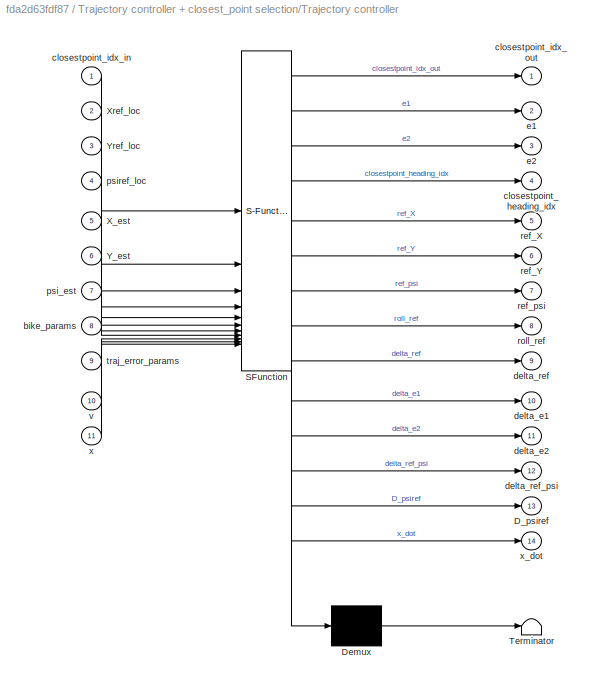
BLOCK [SubSystem] Trajectory controller + closest_point selection/Trajectory controller
  ErrorFcn = Stateflow.Translate.translate
  PermitHierarchicalResolution = ExplicitOnly
  SFBlockType = MATLAB Function
  TreatAsAtomicUnit = on
BLOCK [Demux] Trajectory controller + closest_point selection/Trajectory controller/ Demux 
  Outputs = 1
BLOCK [S-Function] Trajectory controller + closest_point selection/Trajectory controller/ SFunction 
  EnableBusSupport = on
  FunctionName = sf_sfun
  Parameters = Ad_t,Bd_t,C_t,D_t
  PortCounts = [11 15]
  SFcnIsStateOwnerBlock = off
  SFunctionDeploymentMode = off
  Tag = Stateflow S-Function 2
BLOCK [Terminator] Trajectory controller + closest_point selection/Trajectory controller/ Terminator 
BLOCK [Outport] Trajectory controller + closest_point selection/Trajectory controller/D_psiref
  Port = 13
BLOCK [Inport] Trajectory controller + closest_point selection/Trajectory controller/X_est
  Port = 5
BLOCK [Inport] Trajectory controller + closest_point selection/Trajectory controller/Xref_loc
  Port = 2
BLOCK [Inport] Trajectory controller + closest_point selection/Trajectory controller/Y_est
  Port = 6
BLOCK [Inport] Trajectory controller + closest_point selection/Trajectory controller/Yref_loc
  Port = 3
BLOCK [Inport] Trajectory controller + closest_point selection/Trajectory controller/bike_params
  Port = 8
BLOCK [Outport] Trajectory controller + closest_point selection/Trajectory controller/closestpoint_heading_idx
  Port = 4
BLOCK [Inport] Trajectory controller + closest_point selection/Trajectory controller/closestpoint_idx_in
BLOCK [Outport] Trajectory controller + closest_point selection/Trajectory controller/closestpoint_idx_out
BLOCK [Outport] Trajectory controller + closest_point selection/Trajectory controller/delta_e1
  Port = 10
BLOCK [Outport] Trajectory controller + closest_point selection/Trajectory controller/delta_e2
  Port = 11
BLOCK [Outport] Trajectory controller + closest_point selection/Trajectory controller/delta_ref
  Port = 9
BLOCK [Outport] Trajectory controller + closest_point selection/Trajectory controller/delta_ref_psi
  Port = 12
BLOCK [Outport] Trajectory controller + closest_point selection/Trajectory controller/e1
  Port = 2
BLOCK [Outport] Trajectory controller + closest_point selection/Trajectory controller/e2
  Port = 3
BLOCK [Inport] Trajectory controller + closest_point selection/Trajectory controller/psi_est
  Port = 7
BLOCK [Inport] Trajectory controller + closest_point selection/Trajectory controller/psiref_loc
  Port = 4
BLOCK [Outport] Trajectory controller + closest_point selection/Trajectory controller/ref_X
  Port = 5
BLOCK [Outport] Trajectory controller + closest_point selection/Trajectory controller/ref_Y
  Port = 6
BLOCK [Outport] Trajectory controller + closest_point selection/Trajectory controller/ref_psi
  Port = 7
BLOCK [Outport] Trajectory controller + closest_point selection/Trajectory controller/roll_ref
  Port = 8
BLOCK [Inport] Trajectory controller + closest_point selection/Trajectory controller/traj_error_params
  Port = 9
BLOCK [Inport] Trajectory controller + closest_point selection/Trajectory controller/v
  Port = 10
BLOCK [Inport] Trajectory controller + closest_point selection/Trajectory controller/x
  Port = 11
BLOCK [Outport] Trajectory controller + closest_point selection/Trajectory controller/x_dot
  Port = 14
BLOCK [Outport] Trajectory controller + closest_point selection/roll_ref
BLOCK [Constant] Trajectory controller/Constant
  Value = [g bike_params.lr bike_params.lf bike_params.lambda]
BLOCK [Constant] Trajectory controller/Constant1
  Value = v
BLOCK [Constant] Trajectory controller/Constant2
  Value = [k1 k2 e1_max]
BLOCK [Delay] Trajectory controller/Delay
  DelayLength = 1
  InputPortMap = u0
  NameLocation = top
  SampleTime = Ts
BLOCK [Demux] Trajectory controller/Demux1
  Outputs = 3
BLOCK [Inport] Trajectory controller/Estimated_states
  Port = 4
BLOCK [Goto] Trajectory controller/Goto
  GotoTag = ref_steer_angle
  TagVisibility = global
BLOCK [Goto] Trajectory controller/Goto1
  GotoTag = ref_v
  TagVisibility = global
BLOCK [Goto] Trajectory controller/Goto4
  GotoTag = refX
  TagVisibility = global
BLOCK [Goto] Trajectory controller/Goto5
  GotoTag = ref_Roll
  TagVisibility = global
BLOCK [Goto] Trajectory controller/Goto6
  GotoTag = refY
  TagVisibility = global
BLOCK [Goto] Trajectory controller/Goto7
  GotoTag = refPsi
  TagVisibility = global
BLOCK [Inport] Trajectory controller/Local_Psiref
  Port = 3
BLOCK [Inport] Trajectory controller/Local_Xref
BLOCK [Inport] Trajectory controller/Local_Yref
  Port = 2
BLOCK [Mux] Trajectory controller/Mux1
  DisplayOption = bar
  Inputs = 2
BLOCK [Scope] Trajectory controller/Scope
  Floating = off
  NumInputPorts = 2
  ScopeSpecificationString = Simulink.scopes.TimeScopeBlockCfg('CurrentConfiguration', extmgr.ConfigurationSet(extmgr.Configuration('Core','General UI',true),extmgr.Configuration('Core','Source UI',true),extmgr.Configuration('Sources','WiredSimulink',true,'DataLoggingVariableName','ScopeData1'),extmgr.Configuration('Visuals','Time Domain',true,'SerializedDisplays',{struct('MinYLimReal','-3.90284','MaxYLimReal','3.88645','YLab...<+1508ch>
BLOCK [Terminator] Trajectory controller/Terminator
BLOCK [ToWorkspace] Trajectory controller/To Workspace3
  FixptAsFi = on
  MaxDataPoints = inf
  SampleTime = -1
  SaveFormat = Timeseries
  VariableName = error1
BLOCK [ToWorkspace] Trajectory controller/To Workspace4
  FixptAsFi = on
  MaxDataPoints = inf
  SampleTime = -1
  SaveFormat = Timeseries
  VariableName = error2
BLOCK [ToWorkspace] Trajectory controller/To Workspace5
  FixptAsFi = on
  MaxDataPoints = inf
  SampleTime = -1
  SaveFormat = Timeseries
  VariableName = closestpoint_heading
BLOCK [ToWorkspace] Trajectory controller/To Workspace6
  FixptAsFi = on
  MaxDataPoints = inf
  SampleTime = -1
  SaveFormat = Timeseries
  VariableName = refRoll
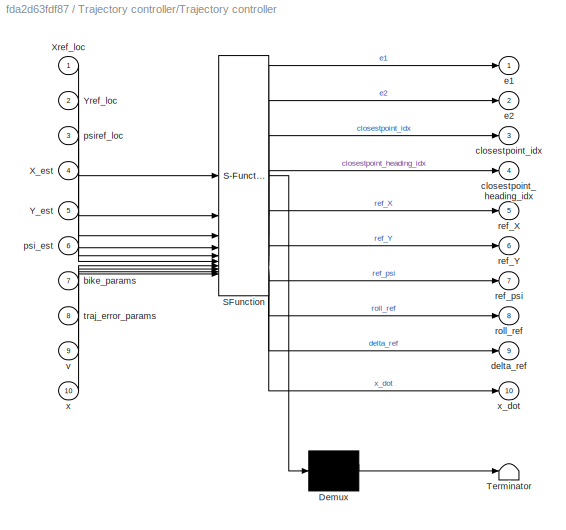
BLOCK [SubSystem] Trajectory controller/Trajectory controller
  ErrorFcn = Stateflow.Translate.translate
  PermitHierarchicalResolution = ExplicitOnly
  SFBlockType = MATLAB Function
  TreatAsAtomicUnit = on
BLOCK [Demux] Trajectory controller/Trajectory controller/ Demux 
  Outputs = 1
BLOCK [S-Function] Trajectory controller/Trajectory controller/ SFunction 
  EnableBusSupport = on
  FunctionName = sf_sfun
  Parameters = Ad_t,Bd_t,C_t,D_t
  PortCounts = [10 11]
  SFcnIsStateOwnerBlock = off
  SFunctionDeploymentMode = off
  Tag = Stateflow S-Function 20
BLOCK [Terminator] Trajectory controller/Trajectory controller/ Terminator 
BLOCK [Inport] Trajectory controller/Trajectory controller/X_est
  Port = 4
BLOCK [Inport] Trajectory controller/Trajectory controller/Xref_loc
BLOCK [Inport] Trajectory controller/Trajectory controller/Y_est
  Port = 5
BLOCK [Inport] Trajectory controller/Trajectory controller/Yref_loc
  Port = 2
BLOCK [Inport] Trajectory controller/Trajectory controller/bike_params
  Port = 7
BLOCK [Outport] Trajectory controller/Trajectory controller/closestpoint_heading_idx
  Port = 4
BLOCK [Outport] Trajectory controller/Trajectory controller/closestpoint_idx
  Port = 3
BLOCK [Outport] Trajectory controller/Trajectory controller/delta_ref
  Port = 9
BLOCK [Outport] Trajectory controller/Trajectory controller/e1
BLOCK [Outport] Trajectory controller/Trajectory controller/e2
  Port = 2
BLOCK [Inport] Trajectory controller/Trajectory controller/psi_est
  Port = 6
BLOCK [Inport] Trajectory controller/Trajectory controller/psiref_loc
  Port = 3
BLOCK [Outport] Trajectory controller/Trajectory controller/ref_X
  Port = 5
BLOCK [Outport] Trajectory controller/Trajectory controller/ref_Y
  Port = 6
BLOCK [Outport] Trajectory controller/Trajectory controller/ref_psi
  Port = 7
BLOCK [Outport] Trajectory controller/Trajectory controller/roll_ref
  Port = 8
BLOCK [Inport] Trajectory controller/Trajectory controller/traj_error_params
  Port = 8
BLOCK [Inport] Trajectory controller/Trajectory controller/v
  Port = 9
BLOCK [Inport] Trajectory controller/Trajectory controller/x
  Port = 10
BLOCK [Outport] Trajectory controller/Trajectory controller/x_dot
  Port = 10
BLOCK [Outport] Trajectory controller/closest_point
  Port = 2
BLOCK [Outport] Trajectory controller/roll_ref
BLOCK [UnitDelay] Unit Delay1
  HasFrameUpgradeWarning = on
  InitialCondition = ref_start_idx
  SampleTime = Ts
BLOCK [SubSystem] Unstable bike model1
BLOCK [Constant] Unstable bike model1/Constant
  Value = bike_model
BLOCK [Constant] Unstable bike model1/Constant1
  Value = bike_model
BLOCK [Inport] Unstable bike model1/Disturbance
  Port = 3
BLOCK [From] Unstable bike model1/From
  GotoTag = delta
  TagVisibility = global
BLOCK [From] Unstable bike model1/From1
  GotoTag = speed
BLOCK [Goto] Unstable bike model1/Goto
  GotoTag = speed
BLOCK [Goto] Unstable bike model1/Goto1
  GotoTag = true_states
  TagVisibility = global
BLOCK [Goto] Unstable bike model1/Goto2
  GotoTag = ref_steer_rate
  TagVisibility = global
BLOCK [SubSystem] Unstable bike model1/Linear Bicycle Model
  Commented = on
BLOCK [Sum] Unstable bike model1/Linear Bicycle Model/Add
  IconShape = rectangular
BLOCK [Constant] Unstable bike model1/Linear Bicycle Model/Constant1
  Value = 9.81*Parameters.inertia_front/(Parameters.h^3*Parameters.m)
BLOCK [Constant] Unstable bike model1/Linear Bicycle Model/Constant11
  Value = linearized_sys.A
  VectorParams1D = off
BLOCK [Constant] Unstable bike model1/Linear Bicycle Model/Constant2
  Value = linearized_sys.D
  VectorParams1D = off
BLOCK [Constant] Unstable bike model1/Linear Bicycle Model/Constant3
  Value = linearized_sys.C
  VectorParams1D = off
BLOCK [Constant] Unstable bike model1/Linear Bicycle Model/Constant4
  Value = linearized_sys.D
  VectorParams1D = off
BLOCK [Constant] Unstable bike model1/Linear Bicycle Model/Constant7
  Value = [linearized_sys.C ; linearized_sys.C*linearized_sys.A]\eye(size(linearized_sys.A))
  VectorParams1D = off
BLOCK [Constant] Unstable bike model1/Linear Bicycle Model/Constant8
  Value = 0
BLOCK [Constant] Unstable bike model1/Linear Bicycle Model/Constant9
  Value = linearized_sys.C
  VectorParams1D = off
BLOCK [Demux] Unstable bike model1/Linear Bicycle Model/Demux
  Outputs = 2
BLOCK [Inport] Unstable bike model1/Linear Bicycle Model/Disturbances (phi_dot; delta_dot)
  Port = 3
BLOCK [Gain] Unstable bike model1/Linear Bicycle Model/Gain
  Gain = Parameters.a/(Parameters.b*Parameters.h)
BLOCK [Gain] Unstable bike model1/Linear Bicycle Model/Gain1
  Gain = 1/(Parameters.b*Parameters.h)
BLOCK [Integrator] Unstable bike model1/Linear Bicycle Model/Integrator
  InitialCondition = Initial_State.steering
BLOCK [Integrator] Unstable bike model1/Linear Bicycle Model/Integrator1
  InitialCondition = [linearized_sys.C ; linearized_sys.C*linearized_sys.A]\[Initial_State.roll ; Initial_State.roll_rate]
BLOCK [Product] Unstable bike model1/Linear Bicycle Model/Multiply
  Multiplication = Matrix(*)
BLOCK [Mux] Unstable bike model1/Linear Bicycle Model/Mux
  DisplayOption = bar
  Inputs = 2
BLOCK [Mux] Unstable bike model1/Linear Bicycle Model/Mux1
  DisplayOption = bar
  Inputs = 2
BLOCK [Product] Unstable bike model1/Linear Bicycle Model/Product1
  Multiplication = Matrix(*)
  NameLocation = top
  SCDEnableBlockLinearizationSpecification = on
BLOCK [Product] Unstable bike model1/Linear Bicycle Model/Product2
  Multiplication = Matrix(*)
  NameLocation = top
  SCDEnableBlockLinearizationSpecification = on
BLOCK [Product] Unstable bike model1/Linear Bicycle Model/Product3
  Multiplication = Matrix(*)
  NameLocation = top
  SCDEnableBlockLinearizationSpecification = on
BLOCK [Product] Unstable bike model1/Linear Bicycle Model/Product4
  Multiplication = Matrix(*)
  NameLocation = top
  SCDEnableBlockLinearizationSpecification = on
BLOCK [Product] Unstable bike model1/Linear Bicycle Model/Product5
  Multiplication = Matrix(*)
  NameLocation = top
  SCDEnableBlockLinearizationSpecification = on
BLOCK [Product] Unstable bike model1/Linear Bicycle Model/Product6
  Multiplication = Matrix(*)
  NameLocation = top
  SCDEnableBlockLinearizationSpecification = on
BLOCK [Reshape] Unstable bike model1/Linear Bicycle Model/Reshape
  OutputDimensionality = Customize
  OutputDimensions = [size(linearized_sys.B,1),size(linearized_sys.B,2)]
BLOCK [Outport] Unstable bike model1/Linear Bicycle Model/Roll
  Port = 2
  VectorParamsAs1DForOutWhenUnconnected = off
BLOCK [Outport] Unstable bike model1/Linear Bicycle Model/Roll Rate
  Port = 3
  VectorParamsAs1DForOutWhenUnconnected = off
BLOCK [Inport] Unstable bike model1/Linear Bicycle Model/Speed
BLOCK [Math] Unstable bike model1/Linear Bicycle Model/Square
  Operator = square
  SignedPower = on
BLOCK [Outport] Unstable bike model1/Linear Bicycle Model/States
  Port = 4
  VectorParamsAs1DForOutWhenUnconnected = off
BLOCK [Outport] Unstable bike model1/Linear Bicycle Model/States Derivatives
  Port = 5
  VectorParamsAs1DForOutWhenUnconnected = off
BLOCK [Outport] Unstable bike model1/Linear Bicycle Model/Steering Angle
  VectorParamsAs1DForOutWhenUnconnected = off
BLOCK [Inport] Unstable bike model1/Linear Bicycle Model/Steering Rate
  Port = 2
BLOCK [Sum] Unstable bike model1/Linear Bicycle Model/Sum1
BLOCK [Sum] Unstable bike model1/Linear Bicycle Model/Sum2
  Inputs = +++
BLOCK [Sum] Unstable bike model1/Linear Bicycle Model/Sum3
BLOCK [Sum] Unstable bike model1/Linear Bicycle Model/Sum5
  Inputs = ++|
BLOCK [MultiPortSwitch] Unstable bike model1/Multiport Switch
  InputSameDT = off
  Inputs = 2
  SaturateOnIntegerOverflow = off
BLOCK [MultiPortSwitch] Unstable bike model1/Multiport Switch1
  InputSameDT = off
  Inputs = 2
  SaturateOnIntegerOverflow = off
BLOCK [Mux] Unstable bike model1/Mux
  DisplayOption = bar
  Inputs = 2
BLOCK [Mux] Unstable bike model1/Mux1
  DisplayOption = bar
  Inputs = 2
BLOCK [Mux] Unstable bike model1/Mux2
  DisplayOption = bar
  Inputs = 2
BLOCK [Mux] Unstable bike model1/Mux3
  DisplayOption = bar
  Inputs = 3
BLOCK [SubSystem] Unstable bike model1/Nonlinear Bicycle model
BLOCK [Demux] Unstable bike model1/Nonlinear Bicycle model/Demux
  Outputs = 3
BLOCK [Demux] Unstable bike model1/Nonlinear Bicycle model/Demux1
  Outputs = 3
BLOCK [Inport] Unstable bike model1/Nonlinear Bicycle model/Disturbances (phi_dot; delta_dot)
  Port = 3
BLOCK [Goto] Unstable bike model1/Nonlinear Bicycle model/Goto
  GotoTag = delta
  TagVisibility = global
BLOCK [Integrator] Unstable bike model1/Nonlinear Bicycle model/Integrator2
  InitialCondition = [initial_state.roll ; initial_state.steering ; initial_state.roll_rate]
BLOCK [SubSystem] Unstable bike model1/Nonlinear Bicycle model/MATLAB Function
  ErrorFcn = Stateflow.Translate.translate
  LibrarySourceBlock = simulink/User-Defined\nFunctions/MATLAB Function
  PermitHierarchicalResolution = ExplicitOnly
  SFBlockType = MATLAB Function
  TreatAsAtomicUnit = on
BLOCK [Demux] Unstable bike model1/Nonlinear Bicycle model/MATLAB Function/ Demux 
  Outputs = 1
BLOCK [S-Function] Unstable bike model1/Nonlinear Bicycle model/MATLAB Function/ SFunction 
  EnableBusSupport = on
  FunctionName = sf_sfun
  PortCounts = [5 2]
  SFcnIsStateOwnerBlock = off
  SFunctionDeploymentMode = off
  Tag = Stateflow S-Function 13
BLOCK [Terminator] Unstable bike model1/Nonlinear Bicycle model/MATLAB Function/ Terminator 
BLOCK [Inport] Unstable bike model1/Nonlinear Bicycle model/MATLAB Function/Speed
  Port = 3
BLOCK [Inport] Unstable bike model1/Nonlinear Bicycle model/MATLAB Function/States
BLOCK [Inport] Unstable bike model1/Nonlinear Bicycle model/MATLAB Function/Steering_rate
  Port = 2
BLOCK [Inport] Unstable bike model1/Nonlinear Bicycle model/MATLAB Function/bike_params
  Port = 5
BLOCK [Inport] Unstable bike model1/Nonlinear Bicycle model/MATLAB Function/disturbances
  Port = 4
BLOCK [Outport] Unstable bike model1/Nonlinear Bicycle model/MATLAB Function/xdot
BLOCK [Mux] Unstable bike model1/Nonlinear Bicycle model/Mux
  DisplayOption = bar
  Inputs = 3
BLOCK [Constant] Unstable bike model1/Nonlinear Bicycle model/Real Bike Parameters
  NameLocation = top
  SampleTime = Ts
  Value = [g bike_params.h bike_params.lr bike_params.lf bike_params.lambda bike_params.c bike_params.m bike_params.IMU_height bike_params.Xgps bike_params.Ygps bike_params.Hgps]
BLOCK [Outport] Unstable bike model1/Nonlinear Bicycle model/Roll
  Port = 2
  VectorParamsAs1DForOutWhenUnconnected = off
BLOCK [Outport] Unstable bike model1/Nonlinear Bicycle model/Roll Rate
  Port = 3
  VectorParamsAs1DForOutWhenUnconnected = off
BLOCK [Saturate] Unstable bike model1/Nonlinear Bicycle model/Saturation
  LowerLimit = -deg2rad(57.3)
  UpperLimit = deg2rad(48.7)
BLOCK [Scope] Unstable bike model1/Nonlinear Bicycle model/Scope
  Floating = off
  NumInputPorts = 1
  ScopeSpecificationString = Simulink.scopes.TimeScopeBlockCfg('CurrentConfiguration', extmgr.ConfigurationSet(extmgr.Configuration('Core','General UI',true),extmgr.Configuration('Core','Source UI',true),extmgr.Configuration('Sources','WiredSimulink',true,'DataLoggingVariableName','ScopeData1'),extmgr.Configuration('Visuals','Time Domain',true,'SerializedDisplays',{struct('MinYLimReal','-3.66519','MaxYLimReal','3.66519','YLab...<+1372ch>
BLOCK [Scope] Unstable bike model1/Nonlinear Bicycle model/Scope1
  Floating = off
  NumInputPorts = 1
  ScopeSpecificationString = Simulink.scopes.TimeScopeBlockCfg('CurrentConfiguration', extmgr.ConfigurationSet(extmgr.Configuration('Core','General UI',true),extmgr.Configuration('Core','Source UI',true),extmgr.Configuration('Sources','WiredSimulink',true,'DataLoggingVariableName','ScopeData2'),extmgr.Configuration('Visuals','Time Domain',true,'SerializedDisplays',{struct('MinYLimReal','-1.23133','MaxYLimReal','1.08123','YLab...<+1369ch>
BLOCK [Scope] Unstable bike model1/Nonlinear Bicycle model/Scope2
  Floating = off
  NumInputPorts = 1
  ScopeSpecificationString = Simulink.scopes.TimeScopeBlockCfg('CurrentConfiguration', extmgr.ConfigurationSet(extmgr.Configuration('Core','General UI',true),extmgr.Configuration('Core','Source UI',true),extmgr.Configuration('Sources','WiredSimulink',true,'DataLoggingVariableName','ScopeData3'),extmgr.Configuration('Visuals','Time Domain',true,'SerializedDisplays',{struct('MinYLimReal','-1.23133','MaxYLimReal','1.08123','YLab...<+1423ch>
BLOCK [Scope] Unstable bike model1/Nonlinear Bicycle model/Scope3
  Floating = off
  NumInputPorts = 1
  ScopeSpecificationString = Simulink.scopes.TimeScopeBlockCfg('CurrentConfiguration', extmgr.ConfigurationSet(extmgr.Configuration('Core','General UI',true),extmgr.Configuration('Core','Source UI',true),extmgr.Configuration('Sources','WiredSimulink',true,'DataLoggingVariableName','ScopeData4'),extmgr.Configuration('Visuals','Time Domain',true,'SerializedDisplays',{struct('MinYLimReal','-2.72845','MaxYLimReal','2.7425','YLabe...<+1429ch>
BLOCK [Inport] Unstable bike model1/Nonlinear Bicycle model/Speed
BLOCK [Outport] Unstable bike model1/Nonlinear Bicycle model/Steer angle
  VectorParamsAs1DForOutWhenUnconnected = off
BLOCK [Inport] Unstable bike model1/Nonlinear Bicycle model/Steering Rate
  Port = 2
BLOCK [Inport] Unstable bike model1/Speed
  Port = 2
BLOCK [Outport] Unstable bike model1/States
BLOCK [Inport] Unstable bike model1/Steering Rate
BLOCK [Terminator] Unstable bike model1/Terminator
BLOCK [Terminator] Unstable bike model1/Terminator1
BLOCK [SubSystem] Unstable bike model1/Track bycicle pose
BLOCK [Constant] Unstable bike model1/Track bycicle pose/Constant
  Value = [bike_params.lr bike_params.lf bike_params.lambda]
BLOCK [SubSystem] Unstable bike model1/Track bycicle pose/Derivative of positions
  ErrorFcn = Stateflow.Translate.translate
  PermitHierarchicalResolution = ExplicitOnly
  SFBlockType = MATLAB Function
  TreatAsAtomicUnit = on
BLOCK [Demux] Unstable bike model1/Track bycicle pose/Derivative of positions/ Demux 
  Outputs = 1
BLOCK [S-Function] Unstable bike model1/Track bycicle pose/Derivative of positions/ SFunction 
  EnableBusSupport = on
  FunctionName = sf_sfun
  PortCounts = [3 3]
  SFcnIsStateOwnerBlock = off
  SFunctionDeploymentMode = off
  Tag = Stateflow S-Function 16
BLOCK [Terminator] Unstable bike model1/Track bycicle pose/Derivative of positions/ Terminator 
BLOCK [Inport] Unstable bike model1/Track bycicle pose/Derivative of positions/Speed
BLOCK [Outport] Unstable bike model1/Track bycicle pose/Derivative of positions/Xdot
  VectorParamsAs1DForOutWhenUnconnected = off
BLOCK [Outport] Unstable bike model1/Track bycicle pose/Derivative of positions/Ydot
  Port = 2
  VectorParamsAs1DForOutWhenUnconnected = off
BLOCK [Inport] Unstable bike model1/Track bycicle pose/Derivative of positions/beta
  Port = 2
BLOCK [Inport] Unstable bike model1/Track bycicle pose/Derivative of positions/psi
  Port = 3
BLOCK [Reference] Unstable bike model1/Track bycicle pose/Integrator with Wrapped State (between -pi & pi)  REF=eeGeneralControl/Integrator with
Wrapped State
(Discrete or Continuous)
  SourceBlock = eeGeneralControl/Integrator with\nWrapped State\n(Discrete or Continuous)
  SourceType = Integrator with Wrapped State (Discrete or Continuous)
BLOCK [Integrator] Unstable bike model1/Track bycicle pose/Integrator1
  InitialCondition = initial_state_estimate.x
BLOCK [Integrator] Unstable bike model1/Track bycicle pose/Integrator2
  InitialCondition = initial_state_estimate.y
BLOCK [SubSystem] Unstable bike model1/Track bycicle pose/MATLAB Function
  ErrorFcn = Stateflow.Translate.translate
  LibrarySourceBlock = simulink/User-Defined\nFunctions/MATLAB Function
  PermitHierarchicalResolution = ExplicitOnly
  SFBlockType = MATLAB Function
  TreatAsAtomicUnit = on
BLOCK [Demux] Unstable bike model1/Track bycicle pose/MATLAB Function/ Demux 
  Outputs = 1
BLOCK [S-Function] Unstable bike model1/Track bycicle pose/MATLAB Function/ SFunction 
  EnableBusSupport = on
  FunctionName = sf_sfun
  PortCounts = [3 3]
  SFcnIsStateOwnerBlock = off
  SFunctionDeploymentMode = off
  Tag = Stateflow S-Function 17
BLOCK [Terminator] Unstable bike model1/Track bycicle pose/MATLAB Function/ Terminator 
BLOCK [Inport] Unstable bike model1/Track bycicle pose/MATLAB Function/Speed
BLOCK [Outport] Unstable bike model1/Track bycicle pose/MATLAB Function/beta
BLOCK [Inport] Unstable bike model1/Track bycicle pose/MATLAB Function/bike_params
  Port = 3
BLOCK [Outport] Unstable bike model1/Track bycicle pose/MATLAB Function/psi_dot
  Port = 2
BLOCK [Inport] Unstable bike model1/Track bycicle pose/MATLAB Function/steer_angle
  Port = 2
BLOCK [Mux] Unstable bike model1/Track bycicle pose/Mux
  DisplayOption = bar
  Inputs = 3
BLOCK [Outport] Unstable bike model1/Track bycicle pose/Pose
BLOCK [Inport] Unstable bike model1/Track bycicle pose/Speed
BLOCK [Inport] Unstable bike model1/Track bycicle pose/Steer angle
  Port = 2
BLOCK [Record] XY Graph1
  Commented = on
  CompatibilityTag = XY
  FileSettingsInternal = {"entries":[{"content":{"excelSettings":{"content":{},"type":"Streamout.ExcelSettings"}},"type":"Streamout.FileSettingStorage","uuid":""}],"packageUris":["http:\/\/schema.mathworks.com\/mf0\/streamout_blocks\/R2020a"],"version":"1.0"}
  Layout = [1 1]
  SignalsInternal = {"entries":[{"content":{},"type":"RecordBlkView.InputSignals","uuid":""}],"packageUris":["http:\/\/schema.mathworks.com\/mf0\/streamout_blocks\/R2020a"],"version":"1.0"}
  VisualizationBindings = {"xyplotplugin":{"info":[{"series":[],"subplotID":1}]}}
BLOCK [Constant] Xreference1
  Value = Xref
BLOCK [Constant] Yreference1
  Value = Yref
ANNOTATION (root): Only for debug reference
ANNOTATION Sensors1: Discretize the signals
ANNOTATION Sensors1: If u2 == 0 --> no noise is added If u2 != 0 --> noise is added
ANNOTATION Sensors1: These states will be used for debug (if we want te exclude the estimator)
ANNOTATION State estimator1: Flag == 0 when a GPS measurement is available
ANNOTATION State estimator1: If u2 == 0 --> estimations are outputed If u2 != 0 --> True states are outputed
ANNOTATION Trajectory controller + closest_point selection: Only for debug reference
ANNOTATION Unstable bike model1: Linear_steering_angle
ANNOTATION Unstable bike model1: If bike_model == 1 --> Non-linear model is used
LINE Balancing Controller 1/D term1:1 -> Balancing Controller 1/Subtract:2
LINE Balancing Controller 1/Estimated Roll Rate:1 -> Balancing Controller 1/Gain:1
LINE Balancing Controller 1/Estimated Roll:1 -> Balancing Controller 1/Gain1:1
LINE Balancing Controller 1/Gain1:1 -> Balancing Controller 1/Sum2:2
LINE Balancing Controller 1/Gain:1 -> Balancing Controller 1/D term1:1
LINE Balancing Controller 1/P term1:1 -> Balancing Controller 1/Subtract:1
LINE Balancing Controller 1/Reference Roll:1 -> Balancing Controller 1/Sum2:1
LINE Balancing Controller 1/Subtract:1 -> Balancing Controller 1/Steering Rate:1
LINE Balancing Controller 1/Sum2:1 -> Balancing Controller 1/P term1:1
LINE Balancing Controller 1:1 -> Saturation:1
LINE Constant2:1 -> Unstable bike model1:2
LINE Constant5:1 -> Drive Motor with Disturbance1:1
LINE Constant6:1 -> Drive Motor with Disturbance1:2
LINE Delay1:1 -> State estimator1:1
LINE Demux1:1 -> Goto3:1
LINE Demux1:2 -> Goto4:1
LINE Demux1:3 -> Goto5:1
LINE Drive Motor with Disturbance1/Disturbance:1 -> Drive Motor with Disturbance1/Sum2:1
LINE Drive Motor with Disturbance1/Speed Setpoint:1 -> Drive Motor with Disturbance1/Transfer Fcn:1
LINE Drive Motor with Disturbance1/Sum2:1 -> Drive Motor with Disturbance1/Speed:1
LINE Drive Motor with Disturbance1/Transfer Fcn:1 -> Drive Motor with Disturbance1/Sum2:2
LINE Drive Motor with Disturbance1:1 -> Goto1:1
NET From2:1 -> Scope16:1, Unstable bike model1:3
LINE From5:1 -> XY Graph1:2
LINE From6:1 -> Demux1:1
LINE From7:1 -> XY Graph1:1
LINE Manual Switch:1 -> Balancing Controller 1:1
LINE Mux1:1 -> Goto2:1
NET PSIreference1:1 -> Selection of local reference from total reference1:3, Trajectory controller + closest_point selection:3
LINE Physical Disturbances1/Clock8:1 -> Physical Disturbances1/Interpreted MATLAB Function7:1
LINE Physical Disturbances1/Clock9:1 -> Physical Disturbances1/Interpreted MATLAB Function8:1
NET Physical Disturbances1/Gain8:1 -> Physical Disturbances1/Goto26:1, Physical Disturbances1/Roll Rate State Disturb:1, Physical Disturbances1/To Workspace28:1
NET Physical Disturbances1/Gain9:1 -> Physical Disturbances1/Goto27:1, Physical Disturbances1/Steering Rate State Disturb:1
LINE Physical Disturbances1/Interpreted MATLAB Function7:1 -> Physical Disturbances1/Gain8:1
LINE Physical Disturbances1/Interpreted MATLAB Function8:1 -> Physical Disturbances1/Gain9:1
NET Saturation:1 -> Delay1:1, Unstable bike model1:1
LINE Selection of local reference from total reference1/Estimated_X//Y//Psi:1 -> Selection of local reference from total reference1/Zero-Order Hold:1
NET Selection of local reference from total reference1/Local reference selection & stop funcion:1 -> Selection of local reference from total reference1/To Workspace1:1, Selection of local reference from total reference1/Unit Delay:1
LINE Selection of local reference from total reference1/Local reference selection & stop funcion:2 -> Selection of local reference from total reference1/Local_Xref:1
LINE Selection of local reference from total reference1/Local reference selection & stop funcion:3 -> Selection of local reference from total reference1/Local_Yref:1
LINE Selection of local reference from total reference1/Local reference selection & stop funcion:4 -> Selection of local reference from total reference1/Local_Psiref:1
NET Selection of local reference from total reference1/Local reference selection & stop funcion:5 -> Selection of local reference from total reference1/Stop Simulation:1, Selection of local reference from total reference1/To Workspace2:1
LINE Selection of local reference from total reference1/Psiref:1 -> Selection of local reference from total reference1/Local reference selection & stop funcion:4
LINE Selection of local reference from total reference1/Step:1 -> Selection of local reference from total reference1/Zero-Order Hold1:1
LINE Selection of local reference from total reference1/Unit Delay:1 -> Selection of local reference from total reference1/Local reference selection & stop funcion:1
LINE Selection of local reference from total reference1/Xref:1 -> Selection of local reference from total reference1/Local reference selection & stop funcion:2
LINE Selection of local reference from total reference1/Yref:1 -> Selection of local reference from total reference1/Local reference selection & stop funcion:3
LINE Selection of local reference from total reference1/Zero-Order Hold1:1 -> Selection of local reference from total reference1/Local reference selection & stop funcion:6
LINE Selection of local reference from total reference1/Zero-Order Hold:1 -> Selection of local reference from total reference1/Local reference selection & stop funcion:7
NET Selection of local reference from total reference1/closes_point:1 -> Selection of local reference from total reference1/Local reference selection & stop funcion:5, Selection of local reference from total reference1/To Workspace:1
LINE Selection of local reference from total reference1:1 -> Trajectory controller:1
LINE Selection of local reference from total reference1:2 -> Trajectory controller:2
LINE Selection of local reference from total reference1:3 -> Trajectory controller:3
LINE Sensors1/Band-Limited White Noise1:1 -> Sensors1/Mux2:3
LINE Sensors1/Band-Limited White Noise2:1 -> Sensors1/Mux2:4
LINE Sensors1/Band-Limited White Noise3:1 -> Sensors1/Mux2:5
LINE Sensors1/Band-Limited White Noise4:1 -> Sensors1/Mux2:6
LINE Sensors1/Band-Limited White Noise5:1 -> Sensors1/Mux2:7
LINE Sensors1/Band-Limited White Noise6:1 -> Sensors1/Mux2:2
LINE Sensors1/Band-Limited White Noise:1 -> Sensors1/Mux2:1
LINE Sensors1/Constant1:1 -> Sensors1/Product:1
LINE Sensors1/Constant2:1 -> Sensors1/Switch1:3
LINE Sensors1/Constant3:1 -> Sensors1/Switch1:2
LINE Sensors1/Constant5:1 -> Sensors1/Define true sensor positions on the bike:1
LINE Sensors1/Constant:1 -> Sensors1/Mux:7
LINE Sensors1/Define true sensor positions on the bike:1 -> Sensors1/Product:2
LINE Sensors1/Demux1:1 -> Sensors1/Mux:1
LINE Sensors1/Demux1:2 -> Sensors1/Mux:2
LINE Sensors1/Demux1:3 -> Sensors1/Mux:3
LINE Sensors1/Demux1:4 -> Sensors1/Mux:4
LINE Sensors1/Demux1:5 -> Sensors1/Mux:5
LINE Sensors1/Demux:1 -> Sensors1/Zero-Order Hold:1
LINE Sensors1/Demux:2 -> Sensors1/Zero-Order Hold1:1
LINE Sensors1/Demux:3 -> Sensors1/Zero-Order Hold2:1
LINE Sensors1/Demux:4 -> Sensors1/Zero-Order Hold3:1
LINE Sensors1/Demux:5 -> Sensors1/Zero-Order Hold4:1
LINE Sensors1/Demux:6 -> Sensors1/Zero-Order Hold5:1
LINE Sensors1/Demux:7 -> Sensors1/Zero-Order Hold6:1
LINE Sensors1/From:1 -> Sensors1/Mux:6
LINE Sensors1/Mux1:1 -> Sensors1/Sum:2
LINE Sensors1/Mux2:1 -> Sensors1/Switch1:1
NET Sensors1/Mux:1 -> Sensors1/Define true sensor positions on the bike:2, Sensors1/Goto:1
LINE Sensors1/Product:1 -> Sensors1/Demux:1
LINE Sensors1/Signal Builder:1 -> Sensors1/Scope20:1
LINE Sensors1/States:1 -> Sensors1/Demux1:1
NET Sensors1/Sum:1 -> Sensors1/Measurements:1, Sensors1/Scope:1, Sensors1/To Workspace:1
LINE Sensors1/Switch1:1 -> Sensors1/Sum:1
LINE Sensors1/Zero-Order Hold1:1 -> Sensors1/Mux1:2
LINE Sensors1/Zero-Order Hold2:1 -> Sensors1/Mux1:3
LINE Sensors1/Zero-Order Hold3:1 -> Sensors1/Mux1:4
LINE Sensors1/Zero-Order Hold4:1 -> Sensors1/Mux1:5
LINE Sensors1/Zero-Order Hold5:1 -> Sensors1/Mux1:6
LINE Sensors1/Zero-Order Hold6:1 -> Sensors1/Mux1:7
LINE Sensors1/Zero-Order Hold:1 -> Sensors1/Mux1:1
LINE Sensors1:1 -> State estimator1:2
LINE Signal Builder:1 -> Manual Switch:1
LINE State estimator1/Constant2:1 -> State estimator1/Linearized Bicycle Model on Constant Velocity:4
LINE State estimator1/Constant3:1 -> State estimator1/Switch:2
LINE State estimator1/Constant4:1 -> State estimator1/Linearized Bicycle Model on Constant Velocity:5
LINE State estimator1/Constant5:1 -> State estimator1/Terminator:1
LINE State estimator1/Constant:1 -> State estimator1/Linearized Bicycle Model on Constant Velocity:6
LINE State estimator1/Counter Limited:1 -> State estimator1/Linearized Bicycle Model on Constant Velocity:7
LINE State estimator1/Delay:1 -> State estimator1/Linearized Bicycle Model on Constant Velocity:1
LINE State estimator1/Demux1:1 -> State estimator1/Mux1:1
LINE State estimator1/Demux1:2 -> State estimator1/Mux1:2
LINE State estimator1/Demux1:3 -> State estimator1/Mux1:3
LINE State estimator1/Demux1:4 -> State estimator1/Mux3:2
LINE State estimator1/Demux1:5 -> State estimator1/Mux3:3
NET State estimator1/Demux1:6 -> State estimator1/Scope1:1, State estimator1/Terminator4:1
LINE State estimator1/Demux1:7 -> State estimator1/Terminator1:1
LINE State estimator1/Demux3:1 -> State estimator1/Mux4:1
LINE State estimator1/Demux3:2 -> State estimator1/Mux4:2
LINE State estimator1/Demux3:3 -> State estimator1/Mux4:3
LINE State estimator1/Demux3:4 -> State estimator1/Estimated_Roll:1
LINE State estimator1/Demux3:5 -> State estimator1/Estimated_Roll_Rate:1
LINE State estimator1/Demux:1 -> State estimator1/Mux:1
LINE State estimator1/Demux:2 -> State estimator1/Mux:2
LINE State estimator1/Demux:3 -> State estimator1/Mux:3
LINE State estimator1/Demux:4 -> State estimator1/Mux2:2
LINE State estimator1/Demux:5 -> State estimator1/Mux2:3
LINE State estimator1/Demux:6 -> State estimator1/Terminator2:1
LINE State estimator1/Demux:7 -> State estimator1/Terminator3:1
LINE State estimator1/From:1 -> State estimator1/Demux:1
LINE State estimator1/Gain:1 -> State estimator1/Linearized Bicycle Model on Constant Velocity:2
NET State estimator1/Linearized Bicycle Model on Constant Velocity:1 -> State estimator1/Delay:1, State estimator1/Demux1:1, State estimator1/Goto:1, State estimator1/Scope:1
LINE State estimator1/Mux1:1 -> State estimator1/Mux3:1
LINE State estimator1/Mux2:1 -> State estimator1/Switch:1
LINE State estimator1/Mux3:1 -> State estimator1/Switch:3
LINE State estimator1/Mux4:1 -> State estimator1/Estimated_X//Y//Psi:1
LINE State estimator1/Mux:1 -> State estimator1/Mux2:1
LINE State estimator1/Switch:1 -> State estimator1/Demux3:1
LINE State estimator1/measurements:1 -> State estimator1/Linearized Bicycle Model on Constant Velocity:3
NET State estimator1/steer_rate:1 -> State estimator1/Gain:1, State estimator1/Goto1:1
NET State estimator1:1 -> Selection of local reference from total reference1:5, Trajectory controller + closest_point selection:4, Trajectory controller:4
LINE State estimator1:2 -> Balancing Controller 1:2
LINE State estimator1:3 -> Balancing Controller 1:3
LINE ToWorkspace/From1:1 -> ToWorkspace/Mux:2
LINE ToWorkspace/From2:1 -> ToWorkspace/Mux:3
LINE ToWorkspace/From3:1 -> ToWorkspace/Mux:6
LINE ToWorkspace/From4:1 -> ToWorkspace/Mux:4
LINE ToWorkspace/From5:1 -> ToWorkspace/Mux:7
LINE ToWorkspace/From6:1 -> ToWorkspace/Mux:5
LINE ToWorkspace/From7:1 -> ToWorkspace/To Workspace1:1
LINE ToWorkspace/From8:1 -> ToWorkspace/To Workspace6:1
LINE ToWorkspace/From9:1 -> ToWorkspace/To Workspace2:1
LINE ToWorkspace/From:1 -> ToWorkspace/Mux:1
LINE ToWorkspace/Mux:1 -> ToWorkspace/To Workspace:1
LINE Trajectory controller + closest_point selection/Constant1:1 -> Trajectory controller + closest_point selection/Trajectory controller:10
LINE Trajectory controller + closest_point selection/Constant2:1 -> Trajectory controller + closest_point selection/Trajectory controller:9
LINE Trajectory controller + closest_point selection/Constant:1 -> Trajectory controller + closest_point selection/Trajectory controller:8
LINE Trajectory controller + closest_point selection/Delay1:1 -> Trajectory controller + closest_point selection/Trajectory controller:1
LINE Trajectory controller + closest_point selection/Delay:1 -> Trajectory controller + closest_point selection/Trajectory controller:11
LINE Trajectory controller + closest_point selection/Demux1:1 -> Trajectory controller + closest_point selection/Trajectory controller:5
LINE Trajectory controller + closest_point selection/Demux1:2 -> Trajectory controller + closest_point selection/Trajectory controller:6
LINE Trajectory controller + closest_point selection/Demux1:3 -> Trajectory controller + closest_point selection/Trajectory controller:7
LINE Trajectory controller + closest_point selection/Estimated_states:1 -> Trajectory controller + closest_point selection/Demux1:1
LINE Trajectory controller + closest_point selection/Local_Psiref:1 -> Trajectory controller + closest_point selection/Trajectory controller:4
LINE Trajectory controller + closest_point selection/Local_Xref:1 -> Trajectory controller + closest_point selection/Trajectory controller:2
LINE Trajectory controller + closest_point selection/Local_Yref:1 -> Trajectory controller + closest_point selection/Trajectory controller:3
LINE Trajectory controller + closest_point selection/Mux1:1 -> Trajectory controller + closest_point selection/Terminator:1
LINE Trajectory controller + closest_point selection/Trajectory controller:1 -> Trajectory controller + closest_point selection/Delay1:1
LINE Trajectory controller + closest_point selection/Trajectory controller:10 -> Trajectory controller + closest_point selection/To Workspace:1
LINE Trajectory controller + closest_point selection/Trajectory controller:11 -> Trajectory controller + closest_point selection/To Workspace1:1
LINE Trajectory controller + closest_point selection/Trajectory controller:12 -> Trajectory controller + closest_point selection/To Workspace3:1
LINE Trajectory controller + closest_point selection/Trajectory controller:13 -> Trajectory controller + closest_point selection/Scope:1
LINE Trajectory controller + closest_point selection/Trajectory controller:14 -> Trajectory controller + closest_point selection/Delay:1
NET Trajectory controller + closest_point selection/Trajectory controller:2 -> Trajectory controller + closest_point selection/Mux1:1, Trajectory controller + closest_point selection/To Workspace5:1
NET Trajectory controller + closest_point selection/Trajectory controller:3 -> Trajectory controller + closest_point selection/Mux1:2, Trajectory controller + closest_point selection/To Workspace6:1
NET Trajectory controller + closest_point selection/Trajectory controller:8 -> Trajectory controller + closest_point selection/Scope2:1, Trajectory controller + closest_point selection/To Workspace4:1, Trajectory controller + closest_point selection/roll_ref:1
NET Trajectory controller + closest_point selection/Trajectory controller:9 -> Trajectory controller + closest_point selection/Scope1:1, Trajectory controller + closest_point selection/To Workspace2:1
LINE Trajectory controller + closest_point selection:1 -> Scope15:2
NET Trajectory controller/Constant1:1 -> Trajectory controller/Goto1:1, Trajectory controller/Trajectory controller:9
LINE Trajectory controller/Constant2:1 -> Trajectory controller/Trajectory controller:8
LINE Trajectory controller/Constant:1 -> Trajectory controller/Trajectory controller:7
LINE Trajectory controller/Delay:1 -> Trajectory controller/Trajectory controller:10
LINE Trajectory controller/Demux1:1 -> Trajectory controller/Trajectory controller:4
LINE Trajectory controller/Demux1:2 -> Trajectory controller/Trajectory controller:5
LINE Trajectory controller/Demux1:3 -> Trajectory controller/Trajectory controller:6
LINE Trajectory controller/Estimated_states:1 -> Trajectory controller/Demux1:1
LINE Trajectory controller/Local_Psiref:1 -> Trajectory controller/Trajectory controller:3
LINE Trajectory controller/Local_Xref:1 -> Trajectory controller/Trajectory controller:1
LINE Trajectory controller/Local_Yref:1 -> Trajectory controller/Trajectory controller:2
LINE Trajectory controller/Mux1:1 -> Trajectory controller/Terminator:1
NET Trajectory controller/Trajectory controller:1 -> Trajectory controller/Mux1:1, Trajectory controller/To Workspace3:1
LINE Trajectory controller/Trajectory controller:10 -> Trajectory controller/Delay:1
NET Trajectory controller/Trajectory controller:2 -> Trajectory controller/Mux1:2, Trajectory controller/Scope:1, Trajectory controller/Scope:2, Trajectory controller/To Workspace4:1
LINE Trajectory controller/Trajectory controller:3 -> Trajectory controller/closest_point:1
LINE Trajectory controller/Trajectory controller:4 -> Trajectory controller/To Workspace5:1
LINE Trajectory controller/Trajectory controller:5 -> Trajectory controller/Goto4:1
LINE Trajectory controller/Trajectory controller:6 -> Trajectory controller/Goto6:1
LINE Trajectory controller/Trajectory controller:7 -> Trajectory controller/Goto7:1
NET Trajectory controller/Trajectory controller:8 -> Trajectory controller/Goto5:1, Trajectory controller/To Workspace6:1, Trajectory controller/roll_ref:1
LINE Trajectory controller/Trajectory controller:9 -> Trajectory controller/Goto:1
NET Trajectory controller:1 -> Manual Switch:2, Scope15:1
LINE Trajectory controller:2 -> Unit Delay1:1
LINE Unit Delay1:1 -> Selection of local reference from total reference1:4
LINE Unstable bike model1/Constant1:1 -> Unstable bike model1/Multiport Switch1:1
LINE Unstable bike model1/Constant:1 -> Unstable bike model1/Multiport Switch:1
NET Unstable bike model1/Disturbance:1 -> Unstable bike model1/Linear Bicycle Model:3, Unstable bike model1/Nonlinear Bicycle model:3
LINE Unstable bike model1/From1:1 -> Unstable bike model1/Mux3:3
LINE Unstable bike model1/From:1 -> Unstable bike model1/Mux3:2
LINE Unstable bike model1/Linear Bicycle Model/Add:1 -> Unstable bike model1/Linear Bicycle Model/Mux:1
LINE Unstable bike model1/Linear Bicycle Model/Constant11:1 -> Unstable bike model1/Linear Bicycle Model/Product2:1
LINE Unstable bike model1/Linear Bicycle Model/Constant1:1 -> Unstable bike model1/Linear Bicycle Model/Add:2
LINE Unstable bike model1/Linear Bicycle Model/Constant2:1 -> Unstable bike model1/Linear Bicycle Model/Product6:1
LINE Unstable bike model1/Linear Bicycle Model/Constant3:1 -> Unstable bike model1/Linear Bicycle Model/Product1:1
LINE Unstable bike model1/Linear Bicycle Model/Constant4:1 -> Unstable bike model1/Linear Bicycle Model/Product4:1
LINE Unstable bike model1/Linear Bicycle Model/Constant7:1 -> Unstable bike model1/Linear Bicycle Model/Multiply:1
LINE Unstable bike model1/Linear Bicycle Model/Constant8:1 -> Unstable bike model1/Linear Bicycle Model/Mux1:2
LINE Unstable bike model1/Linear Bicycle Model/Constant9:1 -> Unstable bike model1/Linear Bicycle Model/Product3:1
LINE Unstable bike model1/Linear Bicycle Model/Demux:1 -> Unstable bike model1/Linear Bicycle Model/Mux1:1
LINE Unstable bike model1/Linear Bicycle Model/Demux:2 -> Unstable bike model1/Linear Bicycle Model/Sum5:1
LINE Unstable bike model1/Linear Bicycle Model/Disturbances (phi_dot; delta_dot):1 -> Unstable bike model1/Linear Bicycle Model/Demux:1
LINE Unstable bike model1/Linear Bicycle Model/Gain1:1 -> Unstable bike model1/Linear Bicycle Model/Add:1
LINE Unstable bike model1/Linear Bicycle Model/Gain:1 -> Unstable bike model1/Linear Bicycle Model/Mux:2
NET Unstable bike model1/Linear Bicycle Model/Integrator1:1 -> Unstable bike model1/Linear Bicycle Model/Product2:2, Unstable bike model1/Linear Bicycle Model/Product3:2, Unstable bike model1/Linear Bicycle Model/States:1
NET Unstable bike model1/Linear Bicycle Model/Integrator:1 -> Unstable bike model1/Linear Bicycle Model/Product4:2, Unstable bike model1/Linear Bicycle Model/Product5:2, Unstable bike model1/Linear Bicycle Model/Steering Angle:1
LINE Unstable bike model1/Linear Bicycle Model/Multiply:1 -> Unstable bike model1/Linear Bicycle Model/Sum2:3
LINE Unstable bike model1/Linear Bicycle Model/Mux1:1 -> Unstable bike model1/Linear Bicycle Model/Multiply:2
LINE Unstable bike model1/Linear Bicycle Model/Mux:1 -> Unstable bike model1/Linear Bicycle Model/Reshape:1
LINE Unstable bike model1/Linear Bicycle Model/Product1:1 -> Unstable bike model1/Linear Bicycle Model/Sum3:1
LINE Unstable bike model1/Linear Bicycle Model/Product2:1 -> Unstable bike model1/Linear Bicycle Model/Sum2:1
LINE Unstable bike model1/Linear Bicycle Model/Product3:1 -> Unstable bike model1/Linear Bicycle Model/Sum1:1
LINE Unstable bike model1/Linear Bicycle Model/Product4:1 -> Unstable bike model1/Linear Bicycle Model/Sum1:2
LINE Unstable bike model1/Linear Bicycle Model/Product5:1 -> Unstable bike model1/Linear Bicycle Model/Sum2:2
LINE Unstable bike model1/Linear Bicycle Model/Product6:1 -> Unstable bike model1/Linear Bicycle Model/Sum3:2
LINE Unstable bike model1/Linear Bicycle Model/Reshape:1 -> Unstable bike model1/Linear Bicycle Model/Product5:1
NET Unstable bike model1/Linear Bicycle Model/Speed:1 -> Unstable bike model1/Linear Bicycle Model/Gain:1, Unstable bike model1/Linear Bicycle Model/Square:1
LINE Unstable bike model1/Linear Bicycle Model/Square:1 -> Unstable bike model1/Linear Bicycle Model/Gain1:1
LINE Unstable bike model1/Linear Bicycle Model/Steering Rate:1 -> Unstable bike model1/Linear Bicycle Model/Sum5:2
LINE Unstable bike model1/Linear Bicycle Model/Sum1:1 -> Unstable bike model1/Linear Bicycle Model/Roll:1
NET Unstable bike model1/Linear Bicycle Model/Sum2:1 -> Unstable bike model1/Linear Bicycle Model/Integrator1:1, Unstable bike model1/Linear Bicycle Model/Product1:2, Unstable bike model1/Linear Bicycle Model/States Derivatives:1
LINE Unstable bike model1/Linear Bicycle Model/Sum3:1 -> Unstable bike model1/Linear Bicycle Model/Roll Rate:1
NET Unstable bike model1/Linear Bicycle Model/Sum5:1 -> Unstable bike model1/Linear Bicycle Model/Integrator:1, Unstable bike model1/Linear Bicycle Model/Product6:2
LINE Unstable bike model1/Linear Bicycle Model:1 -> Unstable bike model1/Multiport Switch1:3
LINE Unstable bike model1/Linear Bicycle Model:2 -> Unstable bike model1/Mux2:1
LINE Unstable bike model1/Linear Bicycle Model:3 -> Unstable bike model1/Mux2:2
LINE Unstable bike model1/Linear Bicycle Model:4 -> Unstable bike model1/Terminator:1
LINE Unstable bike model1/Linear Bicycle Model:5 -> Unstable bike model1/Terminator1:1
LINE Unstable bike model1/Multiport Switch1:1 -> Unstable bike model1/Track bycicle pose:2
LINE Unstable bike model1/Multiport Switch:1 -> Unstable bike model1/Mux:2
LINE Unstable bike model1/Mux1:1 -> Unstable bike model1/Multiport Switch:2
LINE Unstable bike model1/Mux2:1 -> Unstable bike model1/Multiport Switch:3
LINE Unstable bike model1/Mux3:1 -> Unstable bike model1/Goto1:1
NET Unstable bike model1/Mux:1 -> Unstable bike model1/Mux3:1, Unstable bike model1/States:1
LINE Unstable bike model1/Nonlinear Bicycle model/Demux1:1 -> Unstable bike model1/Nonlinear Bicycle model/Mux:1
LINE Unstable bike model1/Nonlinear Bicycle model/Demux1:2 -> Unstable bike model1/Nonlinear Bicycle model/Saturation:1
LINE Unstable bike model1/Nonlinear Bicycle model/Demux1:3 -> Unstable bike model1/Nonlinear Bicycle model/Mux:3
LINE Unstable bike model1/Nonlinear Bicycle model/Demux:1 -> Unstable bike model1/Nonlinear Bicycle model/Roll:1
NET Unstable bike model1/Nonlinear Bicycle model/Demux:2 -> Unstable bike model1/Nonlinear Bicycle model/Goto:1, Unstable bike model1/Nonlinear Bicycle model/Steer angle:1
LINE Unstable bike model1/Nonlinear Bicycle model/Demux:3 -> Unstable bike model1/Nonlinear Bicycle model/Roll Rate:1
LINE Unstable bike model1/Nonlinear Bicycle model/Disturbances (phi_dot; delta_dot):1 -> Unstable bike model1/Nonlinear Bicycle model/MATLAB Function:4
NET Unstable bike model1/Nonlinear Bicycle model/Integrator2:1 -> Unstable bike model1/Nonlinear Bicycle model/Demux1:1, Unstable bike model1/Nonlinear Bicycle model/MATLAB Function:1, Unstable bike model1/Nonlinear Bicycle model/Scope3:1
LINE Unstable bike model1/Nonlinear Bicycle model/MATLAB Function:1 -> Unstable bike model1/Nonlinear Bicycle model/Integrator2:1
NET Unstable bike model1/Nonlinear Bicycle model/Mux:1 -> Unstable bike model1/Nonlinear Bicycle model/Demux:1, Unstable bike model1/Nonlinear Bicycle model/Scope2:1
LINE Unstable bike model1/Nonlinear Bicycle model/Real Bike Parameters:1 -> Unstable bike model1/Nonlinear Bicycle model/MATLAB Function:5
NET Unstable bike model1/Nonlinear Bicycle model/Saturation:1 -> Unstable bike model1/Nonlinear Bicycle model/Mux:2, Unstable bike model1/Nonlinear Bicycle model/Scope1:1
LINE Unstable bike model1/Nonlinear Bicycle model/Speed:1 -> Unstable bike model1/Nonlinear Bicycle model/MATLAB Function:3
NET Unstable bike model1/Nonlinear Bicycle model/Steering Rate:1 -> Unstable bike model1/Nonlinear Bicycle model/MATLAB Function:2, Unstable bike model1/Nonlinear Bicycle model/Scope:1
LINE Unstable bike model1/Nonlinear Bicycle model:1 -> Unstable bike model1/Multiport Switch1:2
LINE Unstable bike model1/Nonlinear Bicycle model:2 -> Unstable bike model1/Mux1:1
LINE Unstable bike model1/Nonlinear Bicycle model:3 -> Unstable bike model1/Mux1:2
NET Unstable bike model1/Speed:1 -> Unstable bike model1/Goto:1, Unstable bike model1/Linear Bicycle Model:1, Unstable bike model1/Nonlinear Bicycle model:1, Unstable bike model1/Track bycicle pose:1
NET Unstable bike model1/Steering Rate:1 -> Unstable bike model1/Goto2:1, Unstable bike model1/Linear Bicycle Model:2, Unstable bike model1/Nonlinear Bicycle model:2
LINE Unstable bike model1/Track bycicle pose/Constant:1 -> Unstable bike model1/Track bycicle pose/MATLAB Function:3
LINE Unstable bike model1/Track bycicle pose/Derivative of positions:1 -> Unstable bike model1/Track bycicle pose/Integrator1:1
LINE Unstable bike model1/Track bycicle pose/Derivative of positions:2 -> Unstable bike model1/Track bycicle pose/Integrator2:1
NET Unstable bike model1/Track bycicle pose/Integrator with Wrapped State (between -pi & pi):1 -> Unstable bike model1/Track bycicle pose/Derivative of positions:3, Unstable bike model1/Track bycicle pose/Mux:3
LINE Unstable bike model1/Track bycicle pose/Integrator1:1 -> Unstable bike model1/Track bycicle pose/Mux:1
LINE Unstable bike model1/Track bycicle pose/Integrator2:1 -> Unstable bike model1/Track bycicle pose/Mux:2
LINE Unstable bike model1/Track bycicle pose/MATLAB Function:1 -> Unstable bike model1/Track bycicle pose/Derivative of positions:2
LINE Unstable bike model1/Track bycicle pose/MATLAB Function:2 -> Unstable bike model1/Track bycicle pose/Integrator with Wrapped State (between -pi & pi):1
LINE Unstable bike model1/Track bycicle pose/Mux:1 -> Unstable bike model1/Track bycicle pose/Pose:1
NET Unstable bike model1/Track bycicle pose/Speed:1 -> Unstable bike model1/Track bycicle pose/Derivative of positions:1, Unstable bike model1/Track bycicle pose/MATLAB Function:1
LINE Unstable bike model1/Track bycicle pose/Steer angle:1 -> Unstable bike model1/Track bycicle pose/MATLAB Function:2
LINE Unstable bike model1/Track bycicle pose:1 -> Unstable bike model1/Mux:1
LINE Unstable bike model1:1 -> Sensors1:1
NET Xreference1:1 -> Selection of local reference from total reference1:1, Trajectory controller + closest_point selection:1
NET Yreference1:1 -> Selection of local reference from total reference1:2, Trajectory controller + closest_point selection:2
note: NET lines group one-source signal fan-out (src -> all destinations, sorted); 1:1 wires keep LINE
CHART Sensors1/Define true sensor positions on the bike states=1 transitions=1
  STATE_LABEL 'eML_blk_kernel()'
  STATE_LABEL 'SCRIPT:\nfunction pose_corrected  = fcn(bike_params, pose)\npose_corrected = pose;\n\ngpsX = bike_params(1); % measured offset of GPS parallel to bike\ngpsY = bike_params(2); % measured offset of GPS perpendicular to bike\ngpsH = bike_params(3); % measured offset of GPS from ground to GPS\n\n% define pose_l\npose_l = pose;\n\n% Transform to local frame\n    pose_l(1) =  pose(1) * cos(pose(3)) + pose(2) * sin(...<+545ch>'
CHART State estimator1/Linearized Bicycle Model
on Constant Velocity states=1 transitions=1
  STATE_LABEL 'eML_blk_kernel()'
  STATE_LABEL 'SCRIPT:\nfunction Est_states  = fcn(Est_States, dot_delta, y, Kalman_gain1, Kalman_gain2, bike_params, flag, A_d, B_d, C1, C2, D1, D2, T)\n% description \n% Inputs\n%   Est_States := [X Y psi phi phi_dot delta v] are global at time t \n%   dot_delta_e := effective steering rate\n%   y := measurement vector\n%   Kalman_gain1 := Computed state_feedback gain including GPS meas\n%   Kalman_gain2 := Computed s...<+3608ch>'
CHART Unstable bike model1/Nonlinear Bicycle model/MATLAB Function states=1 transitions=1
  STATE_LABEL 'eML_blk_kernel()'
  STATE_LABEL 'SCRIPT:\nfunction xdot  = fcn(States, Steering_rate, Speed, disturbances, bike_params)\n    % Unpacked bike_params\n    g      = bike_params(1);\n    h      = bike_params(2);\n    lr     = bike_params(3);\n    lf     = bike_params(4);\n    lambda = bike_params(5);\n    c      = bike_params(6);\n    m      = bike_params(7);\n    h_imu  = bike_params(8);\n\nphi =   States(1); %roll\ndelta = States(2); %steering ...<+674ch>'
CHART Unstable bike model1/Track bycicle pose/Derivative of positions states=1 transitions=1
  STATE_LABEL 'eML_blk_kernel()'
  STATE_LABEL 'SCRIPT:\nfunction [Xdot, Ydot]  = fcn(Speed, beta, psi)\n\nXdot = Speed * cos(psi + beta);\nYdot = Speed * sin(psi + beta);\n\n\n'
CHART Unstable bike model1/Track bycicle pose/MATLAB Function states=1 transitions=1
  STATE_LABEL 'eML_blk_kernel()'
  STATE_LABEL 'SCRIPT:\nfunction [beta, psi_dot] = fcn(Speed, steer_angle, bike_params)\nlr       = bike_params(1);\nlf       = bike_params(2);\nlambda  = bike_params(3);\n\neff_steering = steer_angle*sin(lambda);\n\nbeta = atan(lr /(lr+lf) * tan(eff_steering) );\npsi_dot = (Speed / lr) * sin(beta);\n'
CHART Trajectory controller/Trajectory controller states=1 transitions=1
  STATE_LABEL 'eML_blk_kernel()'
  STATE_LABEL 'SCRIPT:\nfunction [e1,e2,closestpoint_idx,closestpoint_heading_idx,ref_X,ref_Y,ref_psi,roll_ref,delta_ref,x_dot]= fcn(Xref_loc,Yref_loc,psiref_loc,X_est,Y_est,psi_est,bike_params,traj_error_params, ...\n                                                                                                            v, x, Ad_t, Bd_t, C_t, D_t)\n%% calculations on a local part of the trajectory\n\n% Unpack par...<+3608ch>'
CHART Selection of local reference from total reference1/Local reference selection & stop funcion states=1 transitions=1
  STATE_LABEL 'eML_blk_kernel()'
  STATE_LABEL 'SCRIPT:\nfunction [ids,local_Xref,local_Yref,local_Psiref,stop] = fcn(last_ids,xref,yref,psiref,closest_point, ref_dis, hor_dis,abort,est)\n% Local reference trajectory starts at point before the current closest\n% point and has a length of M\nids=last_ids+closest_point-1;      % calculate the initial index of the points that will be sent to next block (first point of local_ref)\n\nNs=ceil(hor_dis/ref_d...<+1555ch>'
CHART Trajectory controller + closest_point selection/Trajectory controller states=1 transitions=1
  STATE_LABEL 'eML_blk_kernel()'
  STATE_LABEL 'SCRIPT:\nfunction [closestpoint_idx_out,e1,e2,closestpoint_heading_idx,ref_X,ref_Y,ref_psi,roll_ref,delta_ref,delta_e1,delta_e2,delta_ref_psi,D_psiref,x_dot]= fcn(closestpoint_idx_in,Xref_loc,Yref_loc,psiref_loc,X_est,Y_est,psi_est,bike_params,traj_error_params, ...\n                                                                                                            v, x, Ad_t, Bd_t, C_t, D_t...<+3608ch>'
CHART  states=0 transitions=0
CHART  states=0 transitions=0
CHART  states=0 transitions=0
CHART  states=0 transitions=0
CHART  states=0 transitions=0
CHART  states=0 transitions=0
CHART  states=0 transitions=0
CHART  states=0 transitions=0
